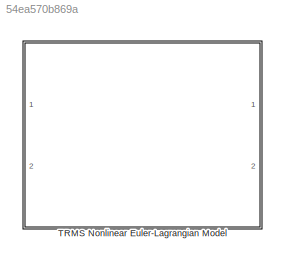
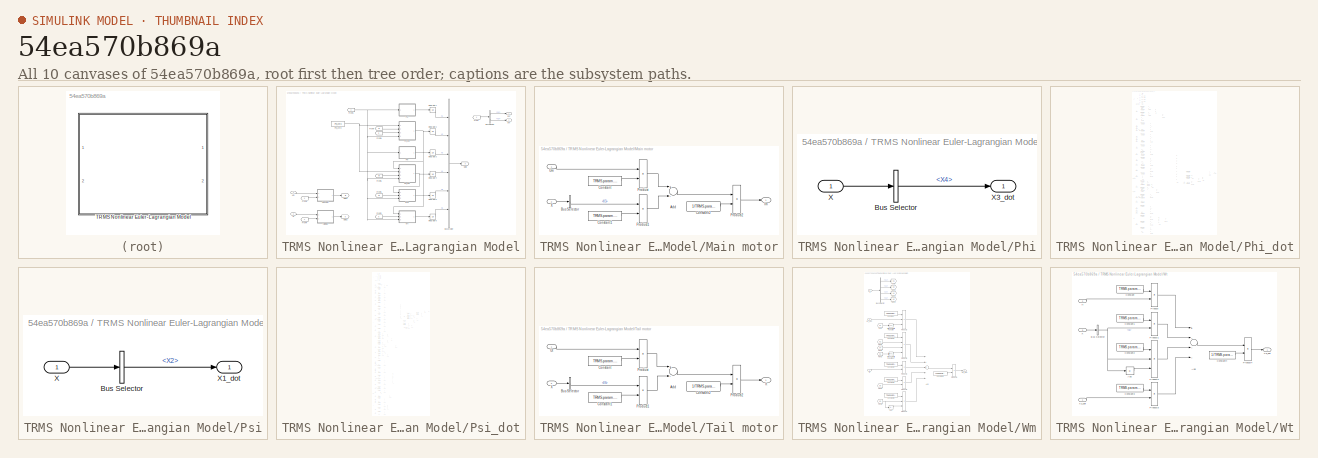
[diagram: thumbnail index - all 10 canvases of the model, root first then tree order]
MODEL slx_54ea570b869a
KIND library
CONFIG AbsTol = auto
CONFIG FixedStep = auto
CONFIG MaxStep = auto
CONFIG MinStep = auto
CONFIG RelTol = 1e-3
CONFIG SampleTimeConstraint = Unconstrained
CONFIG Solver = ode45
CONFIG SolverMode = Auto
CONFIG SolverName = ode45
CONFIG StartTime = 0.0
CONFIG StopTime = 10.0
BLOCK [SubSystem] TRMS Nonlinear Euler-Lagrangian Model
  Ports = [2, 2]
  RequestExecContextInheritance = off
  Variant = off
BLOCK [BusCreator] TRMS Nonlinear Euler-Lagrangian Model/Bus Creator
  DisplayOption = bar
  InheritFromInputs = on
  Inputs = 6
  Ports = [6, 1]
BLOCK [BusSelector] TRMS Nonlinear Euler-Lagrangian Model/Bus Selector
  OutputSignals = X1,X3
  Ports = [1, 2]
BLOCK [From] TRMS Nonlinear Euler-Lagrangian Model/From
  GotoTag = X
BLOCK [From] TRMS Nonlinear Euler-Lagrangian Model/From1
  GotoTag = X
BLOCK [From] TRMS Nonlinear Euler-Lagrangian Model/From2
  GotoTag = It
BLOCK [From] TRMS Nonlinear Euler-Lagrangian Model/From3
  GotoTag = X
BLOCK [From] TRMS Nonlinear Euler-Lagrangian Model/From4
  GotoTag = X
BLOCK [From] TRMS Nonlinear Euler-Lagrangian Model/From5
  GotoTag = Im
BLOCK [From] TRMS Nonlinear Euler-Lagrangian Model/From6
  GotoTag = Im
BLOCK [From] TRMS Nonlinear Euler-Lagrangian Model/From7
  GotoTag = Im
BLOCK [From] TRMS Nonlinear Euler-Lagrangian Model/From8
  GotoTag = It
BLOCK [Goto] TRMS Nonlinear Euler-Lagrangian Model/Goto
  GotoTag = X
BLOCK [Goto] TRMS Nonlinear Euler-Lagrangian Model/Goto1
  GotoTag = Im
BLOCK [Goto] TRMS Nonlinear Euler-Lagrangian Model/Goto2
  GotoTag = It
BLOCK [Integrator] TRMS Nonlinear Euler-Lagrangian Model/Integrator1
  ContinuousStateAttributes = 'Psi'
  InitialCondition = Psi_zero
  Ports = [1, 1]
BLOCK [Integrator] TRMS Nonlinear Euler-Lagrangian Model/Integrator2
  ContinuousStateAttributes = 'Psi_dot'
  InitialCondition = Psi_dot_zero
  Ports = [1, 1]
BLOCK [Integrator] TRMS Nonlinear Euler-Lagrangian Model/Integrator3
  ContinuousStateAttributes = 'Phi'
  InitialCondition = Phi_zero
  Ports = [1, 1]
BLOCK [Integrator] TRMS Nonlinear Euler-Lagrangian Model/Integrator4
  ContinuousStateAttributes = 'Phi_dot'
  InitialCondition = Phi_dot_zero
  Ports = [1, 1]
BLOCK [Integrator] TRMS Nonlinear Euler-Lagrangian Model/Integrator5
  ContinuousStateAttributes = 'Wm'
  InitialCondition = Wm_zero
  Ports = [1, 1]
BLOCK [Integrator] TRMS Nonlinear Euler-Lagrangian Model/Integrator6
  ContinuousStateAttributes = 'Wt'
  InitialCondition = Wt_zero
  Ports = [1, 1]
BLOCK [SubSystem] TRMS Nonlinear Euler-Lagrangian Model/Main motor
  Ports = [2, 1]
  RequestExecContextInheritance = off
  Variant = off
BLOCK [Sum] TRMS Nonlinear Euler-Lagrangian Model/Main motor/Add
  InputSameDT = off
  Inputs = +-
  OutDataTypeStr = Inherit: Inherit via internal rule
  Ports = [2, 1]
  SaturateOnIntegerOverflow = off
BLOCK [BusSelector] TRMS Nonlinear Euler-Lagrangian Model/Main motor/Bus Selector
  OutputSignals = X5
  Ports = [1, 1]
BLOCK [Constant] TRMS Nonlinear Euler-Lagrangian Model/Main motor/Constant
  Value = TRMS.param.kum
BLOCK [Constant] TRMS Nonlinear Euler-Lagrangian Model/Main motor/Constant1
  Value = TRMS.param.kvm
BLOCK [Constant] TRMS Nonlinear Euler-Lagrangian Model/Main motor/Constant2
  Value = 1/TRMS.param.Rm
BLOCK [Outport] TRMS Nonlinear Euler-Lagrangian Model/Main motor/Im
  IconDisplay = Port number
BLOCK [Product] TRMS Nonlinear Euler-Lagrangian Model/Main motor/Product
  InputSameDT = off
  OutDataTypeStr = Inherit: Inherit via internal rule
  Ports = [2, 1]
  RndMeth = Floor
  SaturateOnIntegerOverflow = off
BLOCK [Product] TRMS Nonlinear Euler-Lagrangian Model/Main motor/Product1
  InputSameDT = off
  OutDataTypeStr = Inherit: Inherit via internal rule
  Ports = [2, 1]
  RndMeth = Floor
  SaturateOnIntegerOverflow = off
BLOCK [Product] TRMS Nonlinear Euler-Lagrangian Model/Main motor/Product2
  InputSameDT = off
  OutDataTypeStr = Inherit: Inherit via internal rule
  Ports = [2, 1]
  RndMeth = Floor
  SaturateOnIntegerOverflow = off
BLOCK [Inport] TRMS Nonlinear Euler-Lagrangian Model/Main motor/Um
  IconDisplay = Port number
BLOCK [Inport] TRMS Nonlinear Euler-Lagrangian Model/Main motor/X
  IconDisplay = Port number
  Port = 2
BLOCK [SubSystem] TRMS Nonlinear Euler-Lagrangian Model/Phi
  Ports = [1, 1]
  RequestExecContextInheritance = off
  Variant = off
BLOCK [BusSelector] TRMS Nonlinear Euler-Lagrangian Model/Phi/Bus Selector
  OutputSignals = X4
  Ports = [1, 1]
BLOCK [Inport] TRMS Nonlinear Euler-Lagrangian Model/Phi/X
  IconDisplay = Port number
BLOCK [Outport] TRMS Nonlinear Euler-Lagrangian Model/Phi/X3_dot
  IconDisplay = Port number
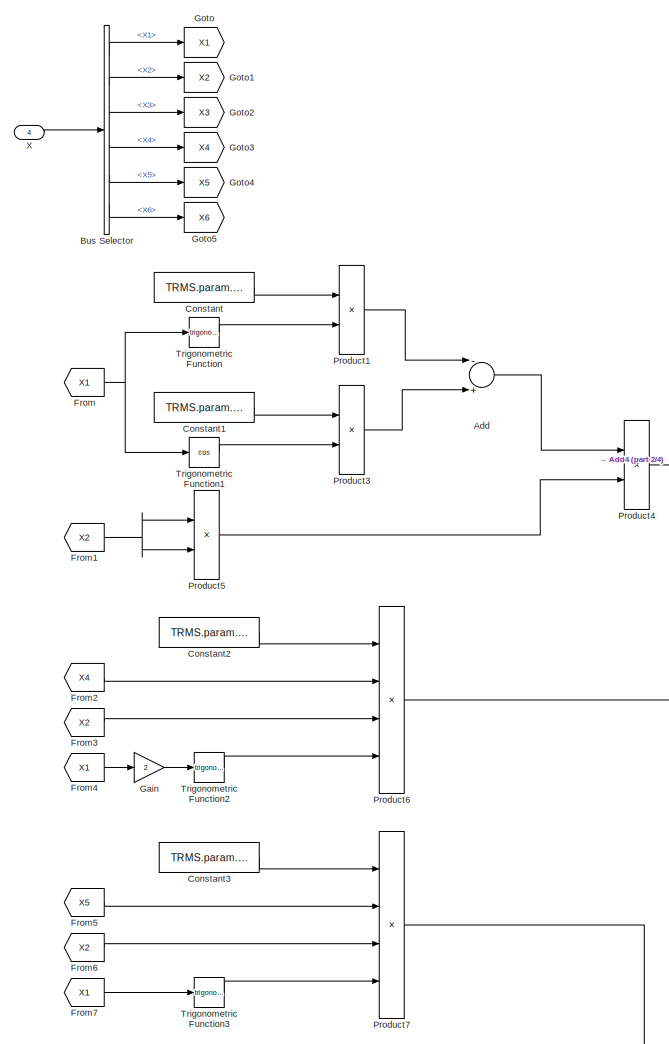
[diagram: TRMS Nonlinear Euler-Lagrangian Model/Phi_dot - part 1/4, top left region]
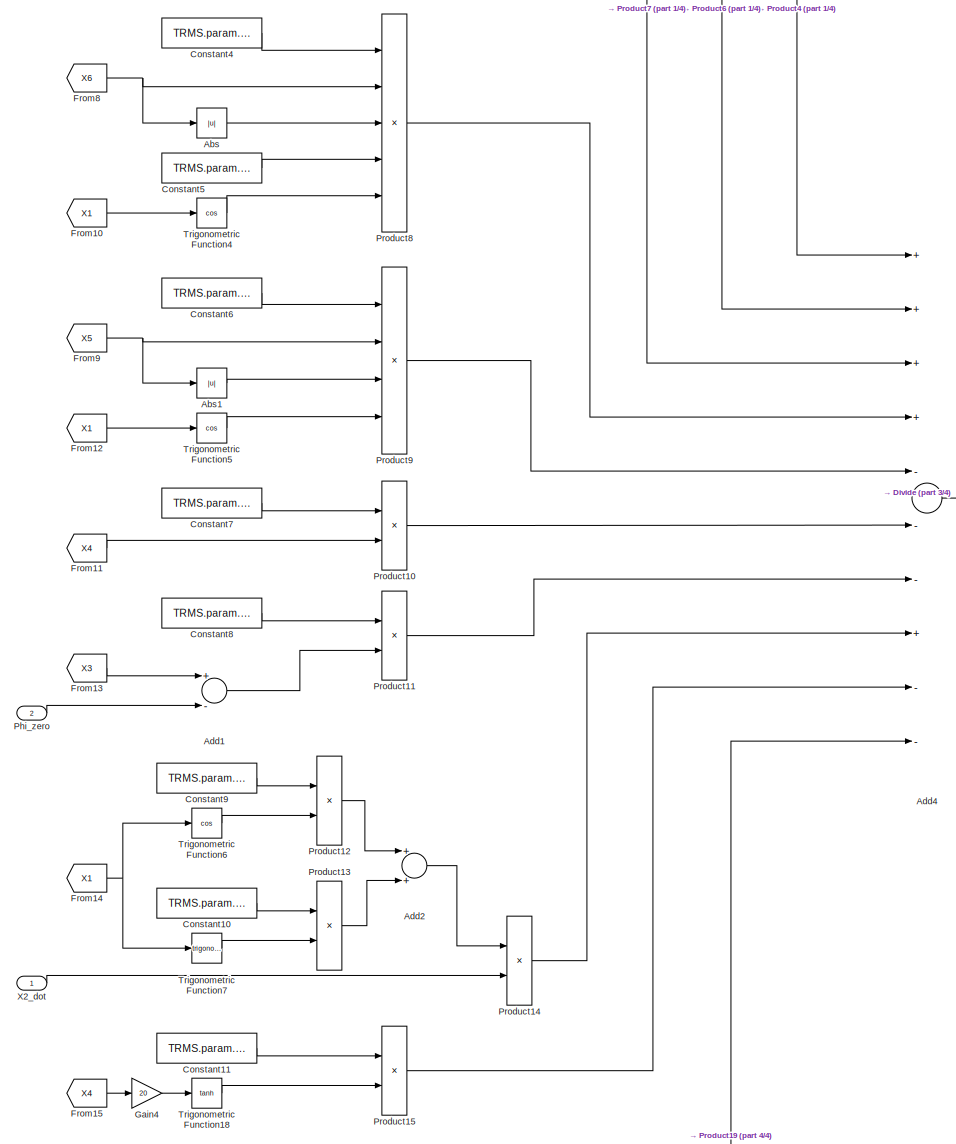
[diagram: TRMS Nonlinear Euler-Lagrangian Model/Phi_dot - part 2/4, middle left region]
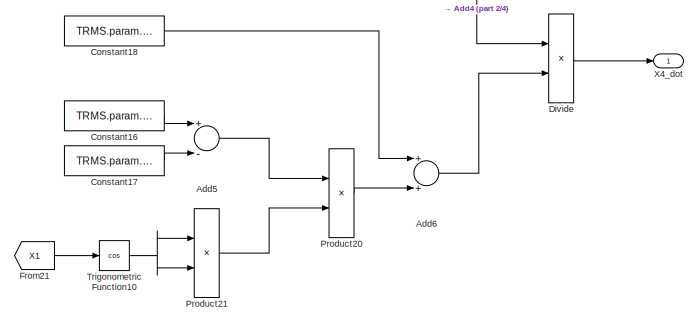
[diagram: TRMS Nonlinear Euler-Lagrangian Model/Phi_dot - part 3/4, middle right region]
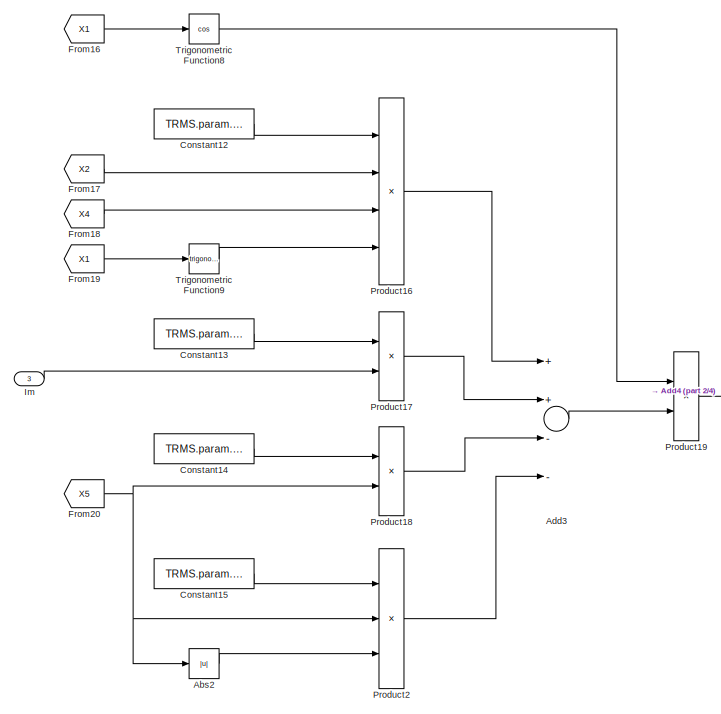
[diagram: TRMS Nonlinear Euler-Lagrangian Model/Phi_dot - part 4/4, bottom left region]
BLOCK [SubSystem] TRMS Nonlinear Euler-Lagrangian Model/Phi_dot
  Ports = [4, 1]
  RequestExecContextInheritance = off
  Variant = off
BLOCK [Abs] TRMS Nonlinear Euler-Lagrangian Model/Phi_dot/Abs
  SaturateOnIntegerOverflow = off
BLOCK [Abs] TRMS Nonlinear Euler-Lagrangian Model/Phi_dot/Abs1
  SaturateOnIntegerOverflow = off
BLOCK [Abs] TRMS Nonlinear Euler-Lagrangian Model/Phi_dot/Abs2
  SaturateOnIntegerOverflow = off
BLOCK [Sum] TRMS Nonlinear Euler-Lagrangian Model/Phi_dot/Add
  InputSameDT = off
  Inputs = -+
  OutDataTypeStr = Inherit: Inherit via internal rule
  Ports = [2, 1]
  SaturateOnIntegerOverflow = off
BLOCK [Sum] TRMS Nonlinear Euler-Lagrangian Model/Phi_dot/Add1
  InputSameDT = off
  Inputs = +-
  OutDataTypeStr = Inherit: Inherit via internal rule
  Ports = [2, 1]
  SaturateOnIntegerOverflow = off
BLOCK [Sum] TRMS Nonlinear Euler-Lagrangian Model/Phi_dot/Add2
  InputSameDT = off
  OutDataTypeStr = Inherit: Inherit via internal rule
  Ports = [2, 1]
  SaturateOnIntegerOverflow = off
BLOCK [Sum] TRMS Nonlinear Euler-Lagrangian Model/Phi_dot/Add3
  InputSameDT = off
  Inputs = ++--
  OutDataTypeStr = Inherit: Inherit via internal rule
  Ports = [4, 1]
  SaturateOnIntegerOverflow = off
BLOCK [Sum] TRMS Nonlinear Euler-Lagrangian Model/Phi_dot/Add4
  InputSameDT = off
  Inputs = ++++---+--
  OutDataTypeStr = Inherit: Inherit via internal rule
  Ports = [10, 1]
  SaturateOnIntegerOverflow = off
BLOCK [Sum] TRMS Nonlinear Euler-Lagrangian Model/Phi_dot/Add5
  InputSameDT = off
  Inputs = +-
  OutDataTypeStr = Inherit: Inherit via internal rule
  Ports = [2, 1]
  SaturateOnIntegerOverflow = off
BLOCK [Sum] TRMS Nonlinear Euler-Lagrangian Model/Phi_dot/Add6
  InputSameDT = off
  OutDataTypeStr = Inherit: Inherit via internal rule
  Ports = [2, 1]
  SaturateOnIntegerOverflow = off
BLOCK [BusSelector] TRMS Nonlinear Euler-Lagrangian Model/Phi_dot/Bus Selector
  OutputSignals = X1,X2,X3,X4,X5,X6
  Ports = [1, 6]
BLOCK [Constant] TRMS Nonlinear Euler-Lagrangian Model/Phi_dot/Constant
  Value = TRMS.param.Hz
BLOCK [Constant] TRMS Nonlinear Euler-Lagrangian Model/Phi_dot/Constant1
  Value = TRMS.param.Hy
BLOCK [Constant] TRMS Nonlinear Euler-Lagrangian Model/Phi_dot/Constant10
  Value = TRMS.param.Hy
BLOCK [Constant] TRMS Nonlinear Euler-Lagrangian Model/Phi_dot/Constant11
  Value = TRMS.param.fcphi
BLOCK [Constant] TRMS Nonlinear Euler-Lagrangian Model/Phi_dot/Constant12
  Value = TRMS.param.Im1
BLOCK [Constant] TRMS Nonlinear Euler-Lagrangian Model/Phi_dot/Constant13
  Value = TRMS.param.ktm
BLOCK [Constant] TRMS Nonlinear Euler-Lagrangian Model/Phi_dot/Constant14
  Value = TRMS.param.fvm
BLOCK [Constant] TRMS Nonlinear Euler-Lagrangian Model/Phi_dot/Constant15
  Value = TRMS.param.Crm
BLOCK [Constant] TRMS Nonlinear Euler-Lagrangian Model/Phi_dot/Constant16
  Value = TRMS.param.Ic
BLOCK [Constant] TRMS Nonlinear Euler-Lagrangian Model/Phi_dot/Constant17
  Value = TRMS.param.Im1
BLOCK [Constant] TRMS Nonlinear Euler-Lagrangian Model/Phi_dot/Constant18
  Value = TRMS.param.Iphi
BLOCK [Constant] TRMS Nonlinear Euler-Lagrangian Model/Phi_dot/Constant2
  Value = TRMS.param.Ic
BLOCK [Constant] TRMS Nonlinear Euler-Lagrangian Model/Phi_dot/Constant3
  Value = TRMS.param.Im1
BLOCK [Constant] TRMS Nonlinear Euler-Lagrangian Model/Phi_dot/Constant4
  Value = TRMS.param.Ctt
BLOCK [Constant] TRMS Nonlinear Euler-Lagrangian Model/Phi_dot/Constant5
  Value = TRMS.param.lt
BLOCK [Constant] TRMS Nonlinear Euler-Lagrangian Model/Phi_dot/Constant6
  Value = TRMS.param.Crm
BLOCK [Constant] TRMS Nonlinear Euler-Lagrangian Model/Phi_dot/Constant7
  Value = TRMS.param.fvphi
BLOCK [Constant] TRMS Nonlinear Euler-Lagrangian Model/Phi_dot/Constant8
  Value = TRMS.param.Cc
BLOCK [Constant] TRMS Nonlinear Euler-Lagrangian Model/Phi_dot/Constant9
  Value = TRMS.param.Hz
BLOCK [Product] TRMS Nonlinear Euler-Lagrangian Model/Phi_dot/Divide
  InputSameDT = off
  Inputs = */
  OutDataTypeStr = Inherit: Inherit via internal rule
  Ports = [2, 1]
  RndMeth = Floor
  SaturateOnIntegerOverflow = off
BLOCK [From] TRMS Nonlinear Euler-Lagrangian Model/Phi_dot/From
  GotoTag = X1
BLOCK [From] TRMS Nonlinear Euler-Lagrangian Model/Phi_dot/From1
  GotoTag = X2
BLOCK [From] TRMS Nonlinear Euler-Lagrangian Model/Phi_dot/From10
  GotoTag = X1
BLOCK [From] TRMS Nonlinear Euler-Lagrangian Model/Phi_dot/From11
  GotoTag = X4
BLOCK [From] TRMS Nonlinear Euler-Lagrangian Model/Phi_dot/From12
  GotoTag = X1
BLOCK [From] TRMS Nonlinear Euler-Lagrangian Model/Phi_dot/From13
  GotoTag = X3
BLOCK [From] TRMS Nonlinear Euler-Lagrangian Model/Phi_dot/From14
  GotoTag = X1
BLOCK [From] TRMS Nonlinear Euler-Lagrangian Model/Phi_dot/From15
  GotoTag = X4
BLOCK [From] TRMS Nonlinear Euler-Lagrangian Model/Phi_dot/From16
  GotoTag = X1
BLOCK [From] TRMS Nonlinear Euler-Lagrangian Model/Phi_dot/From17
  GotoTag = X2
BLOCK [From] TRMS Nonlinear Euler-Lagrangian Model/Phi_dot/From18
  GotoTag = X4
BLOCK [From] TRMS Nonlinear Euler-Lagrangian Model/Phi_dot/From19
  GotoTag = X1
BLOCK [From] TRMS Nonlinear Euler-Lagrangian Model/Phi_dot/From2
  GotoTag = X4
BLOCK [From] TRMS Nonlinear Euler-Lagrangian Model/Phi_dot/From20
  GotoTag = X5
BLOCK [From] TRMS Nonlinear Euler-Lagrangian Model/Phi_dot/From21
  GotoTag = X1
BLOCK [From] TRMS Nonlinear Euler-Lagrangian Model/Phi_dot/From3
  GotoTag = X2
BLOCK [From] TRMS Nonlinear Euler-Lagrangian Model/Phi_dot/From4
  GotoTag = X1
BLOCK [From] TRMS Nonlinear Euler-Lagrangian Model/Phi_dot/From5
  GotoTag = X5
BLOCK [From] TRMS Nonlinear Euler-Lagrangian Model/Phi_dot/From6
  GotoTag = X2
BLOCK [From] TRMS Nonlinear Euler-Lagrangian Model/Phi_dot/From7
  GotoTag = X1
BLOCK [From] TRMS Nonlinear Euler-Lagrangian Model/Phi_dot/From8
  GotoTag = X6
BLOCK [From] TRMS Nonlinear Euler-Lagrangian Model/Phi_dot/From9
  GotoTag = X5
BLOCK [Gain] TRMS Nonlinear Euler-Lagrangian Model/Phi_dot/Gain
  Gain = 2
  OutDataTypeStr = Inherit: Inherit via internal rule
  ParamDataTypeStr = Inherit: Inherit via internal rule
  SaturateOnIntegerOverflow = off
BLOCK [Gain] TRMS Nonlinear Euler-Lagrangian Model/Phi_dot/Gain4
  Gain = 20
  OutDataTypeStr = Inherit: Inherit via internal rule
  ParamDataTypeStr = Inherit: Inherit via internal rule
  SaturateOnIntegerOverflow = off
BLOCK [Goto] TRMS Nonlinear Euler-Lagrangian Model/Phi_dot/Goto
  GotoTag = X1
BLOCK [Goto] TRMS Nonlinear Euler-Lagrangian Model/Phi_dot/Goto1
  GotoTag = X2
BLOCK [Goto] TRMS Nonlinear Euler-Lagrangian Model/Phi_dot/Goto2
  GotoTag = X3
BLOCK [Goto] TRMS Nonlinear Euler-Lagrangian Model/Phi_dot/Goto3
  GotoTag = X4
BLOCK [Goto] TRMS Nonlinear Euler-Lagrangian Model/Phi_dot/Goto4
  GotoTag = X5
BLOCK [Goto] TRMS Nonlinear Euler-Lagrangian Model/Phi_dot/Goto5
  GotoTag = X6
BLOCK [Inport] TRMS Nonlinear Euler-Lagrangian Model/Phi_dot/Im
  IconDisplay = Port number
  Port = 3
BLOCK [Inport] TRMS Nonlinear Euler-Lagrangian Model/Phi_dot/Phi_zero
  IconDisplay = Port number
  Port = 2
BLOCK [Product] TRMS Nonlinear Euler-Lagrangian Model/Phi_dot/Product1
  InputSameDT = off
  OutDataTypeStr = Inherit: Inherit via internal rule
  Ports = [2, 1]
  RndMeth = Floor
  SaturateOnIntegerOverflow = off
BLOCK [Product] TRMS Nonlinear Euler-Lagrangian Model/Phi_dot/Product10
  InputSameDT = off
  OutDataTypeStr = Inherit: Inherit via internal rule
  Ports = [2, 1]
  RndMeth = Floor
  SaturateOnIntegerOverflow = off
BLOCK [Product] TRMS Nonlinear Euler-Lagrangian Model/Phi_dot/Product11
  InputSameDT = off
  OutDataTypeStr = Inherit: Inherit via internal rule
  Ports = [2, 1]
  RndMeth = Floor
  SaturateOnIntegerOverflow = off
BLOCK [Product] TRMS Nonlinear Euler-Lagrangian Model/Phi_dot/Product12
  InputSameDT = off
  OutDataTypeStr = Inherit: Inherit via internal rule
  Ports = [2, 1]
  RndMeth = Floor
  SaturateOnIntegerOverflow = off
BLOCK [Product] TRMS Nonlinear Euler-Lagrangian Model/Phi_dot/Product13
  InputSameDT = off
  OutDataTypeStr = Inherit: Inherit via internal rule
  Ports = [2, 1]
  RndMeth = Floor
  SaturateOnIntegerOverflow = off
BLOCK [Product] TRMS Nonlinear Euler-Lagrangian Model/Phi_dot/Product14
  InputSameDT = off
  OutDataTypeStr = Inherit: Inherit via internal rule
  Ports = [2, 1]
  RndMeth = Floor
  SaturateOnIntegerOverflow = off
BLOCK [Product] TRMS Nonlinear Euler-Lagrangian Model/Phi_dot/Product15
  InputSameDT = off
  OutDataTypeStr = Inherit: Inherit via internal rule
  Ports = [2, 1]
  RndMeth = Floor
  SaturateOnIntegerOverflow = off
BLOCK [Product] TRMS Nonlinear Euler-Lagrangian Model/Phi_dot/Product16
  InputSameDT = off
  Inputs = 4
  OutDataTypeStr = Inherit: Inherit via internal rule
  Ports = [4, 1]
  RndMeth = Floor
  SaturateOnIntegerOverflow = off
BLOCK [Product] TRMS Nonlinear Euler-Lagrangian Model/Phi_dot/Product17
  InputSameDT = off
  OutDataTypeStr = Inherit: Inherit via internal rule
  Ports = [2, 1]
  RndMeth = Floor
  SaturateOnIntegerOverflow = off
BLOCK [Product] TRMS Nonlinear Euler-Lagrangian Model/Phi_dot/Product18
  InputSameDT = off
  OutDataTypeStr = Inherit: Inherit via internal rule
  Ports = [2, 1]
  RndMeth = Floor
  SaturateOnIntegerOverflow = off
BLOCK [Product] TRMS Nonlinear Euler-Lagrangian Model/Phi_dot/Product19
  InputSameDT = off
  OutDataTypeStr = Inherit: Inherit via internal rule
  Ports = [2, 1]
  RndMeth = Floor
  SaturateOnIntegerOverflow = off
BLOCK [Product] TRMS Nonlinear Euler-Lagrangian Model/Phi_dot/Product2
  InputSameDT = off
  Inputs = 3
  OutDataTypeStr = Inherit: Inherit via internal rule
  Ports = [3, 1]
  RndMeth = Floor
  SaturateOnIntegerOverflow = off
BLOCK [Product] TRMS Nonlinear Euler-Lagrangian Model/Phi_dot/Product20
  InputSameDT = off
  OutDataTypeStr = Inherit: Inherit via internal rule
  Ports = [2, 1]
  RndMeth = Floor
  SaturateOnIntegerOverflow = off
BLOCK [Product] TRMS Nonlinear Euler-Lagrangian Model/Phi_dot/Product21
  InputSameDT = off
  OutDataTypeStr = Inherit: Inherit via internal rule
  Ports = [2, 1]
  RndMeth = Floor
  SaturateOnIntegerOverflow = off
BLOCK [Product] TRMS Nonlinear Euler-Lagrangian Model/Phi_dot/Product3
  InputSameDT = off
  OutDataTypeStr = Inherit: Inherit via internal rule
  Ports = [2, 1]
  RndMeth = Floor
  SaturateOnIntegerOverflow = off
BLOCK [Product] TRMS Nonlinear Euler-Lagrangian Model/Phi_dot/Product4
  InputSameDT = off
  OutDataTypeStr = Inherit: Inherit via internal rule
  Ports = [2, 1]
  RndMeth = Floor
  SaturateOnIntegerOverflow = off
BLOCK [Product] TRMS Nonlinear Euler-Lagrangian Model/Phi_dot/Product5
  InputSameDT = off
  OutDataTypeStr = Inherit: Inherit via internal rule
  Ports = [2, 1]
  RndMeth = Floor
  SaturateOnIntegerOverflow = off
BLOCK [Product] TRMS Nonlinear Euler-Lagrangian Model/Phi_dot/Product6
  InputSameDT = off
  Inputs = 4
  OutDataTypeStr = Inherit: Inherit via internal rule
  Ports = [4, 1]
  RndMeth = Floor
  SaturateOnIntegerOverflow = off
BLOCK [Product] TRMS Nonlinear Euler-Lagrangian Model/Phi_dot/Product7
  InputSameDT = off
  Inputs = 4
  OutDataTypeStr = Inherit: Inherit via internal rule
  Ports = [4, 1]
  RndMeth = Floor
  SaturateOnIntegerOverflow = off
BLOCK [Product] TRMS Nonlinear Euler-Lagrangian Model/Phi_dot/Product8
  InputSameDT = off
  Inputs = 5
  OutDataTypeStr = Inherit: Inherit via internal rule
  Ports = [5, 1]
  RndMeth = Floor
  SaturateOnIntegerOverflow = off
BLOCK [Product] TRMS Nonlinear Euler-Lagrangian Model/Phi_dot/Product9
  InputSameDT = off
  Inputs = 4
  OutDataTypeStr = Inherit: Inherit via internal rule
  Ports = [4, 1]
  RndMeth = Floor
  SaturateOnIntegerOverflow = off
BLOCK [Trigonometry] TRMS Nonlinear Euler-Lagrangian Model/Phi_dot/Trigonometric Function
  Ports = [1, 1]
BLOCK [Trigonometry] TRMS Nonlinear Euler-Lagrangian Model/Phi_dot/Trigonometric Function1
  Operator = cos
  Ports = [1, 1]
BLOCK [Trigonometry] TRMS Nonlinear Euler-Lagrangian Model/Phi_dot/Trigonometric Function10
  Operator = cos
  Ports = [1, 1]
BLOCK [Trigonometry] TRMS Nonlinear Euler-Lagrangian Model/Phi_dot/Trigonometric Function18
  Operator = tanh
  Ports = [1, 1]
BLOCK [Trigonometry] TRMS Nonlinear Euler-Lagrangian Model/Phi_dot/Trigonometric Function2
  Ports = [1, 1]
BLOCK [Trigonometry] TRMS Nonlinear Euler-Lagrangian Model/Phi_dot/Trigonometric Function3
  Ports = [1, 1]
BLOCK [Trigonometry] TRMS Nonlinear Euler-Lagrangian Model/Phi_dot/Trigonometric Function4
  Operator = cos
  Ports = [1, 1]
BLOCK [Trigonometry] TRMS Nonlinear Euler-Lagrangian Model/Phi_dot/Trigonometric Function5
  Operator = cos
  Ports = [1, 1]
BLOCK [Trigonometry] TRMS Nonlinear Euler-Lagrangian Model/Phi_dot/Trigonometric Function6
  Operator = cos
  Ports = [1, 1]
BLOCK [Trigonometry] TRMS Nonlinear Euler-Lagrangian Model/Phi_dot/Trigonometric Function7
  Ports = [1, 1]
BLOCK [Trigonometry] TRMS Nonlinear Euler-Lagrangian Model/Phi_dot/Trigonometric Function8
  Operator = cos
  Ports = [1, 1]
BLOCK [Trigonometry] TRMS Nonlinear Euler-Lagrangian Model/Phi_dot/Trigonometric Function9
  Ports = [1, 1]
BLOCK [Inport] TRMS Nonlinear Euler-Lagrangian Model/Phi_dot/X
  IconDisplay = Port number
  Port = 4
BLOCK [Inport] TRMS Nonlinear Euler-Lagrangian Model/Phi_dot/X2_dot
  IconDisplay = Port number
BLOCK [Outport] TRMS Nonlinear Euler-Lagrangian Model/Phi_dot/X4_dot
  IconDisplay = Port number
BLOCK [Constant] TRMS Nonlinear Euler-Lagrangian Model/Phi_zero
  Value = Phi_zero
BLOCK [SubSystem] TRMS Nonlinear Euler-Lagrangian Model/Psi
  Ports = [1, 1]
  RequestExecContextInheritance = off
  Variant = off
BLOCK [BusSelector] TRMS Nonlinear Euler-Lagrangian Model/Psi/Bus Selector
  OutputSignals = X2
  Ports = [1, 1]
BLOCK [Inport] TRMS Nonlinear Euler-Lagrangian Model/Psi/X
  IconDisplay = Port number
BLOCK [Outport] TRMS Nonlinear Euler-Lagrangian Model/Psi/X1_dot
  IconDisplay = Port number
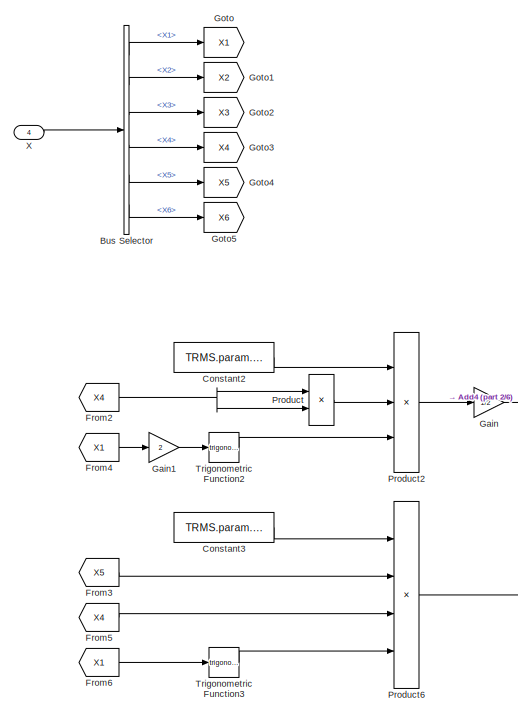
[diagram: TRMS Nonlinear Euler-Lagrangian Model/Psi_dot - part 1/6, top left region]
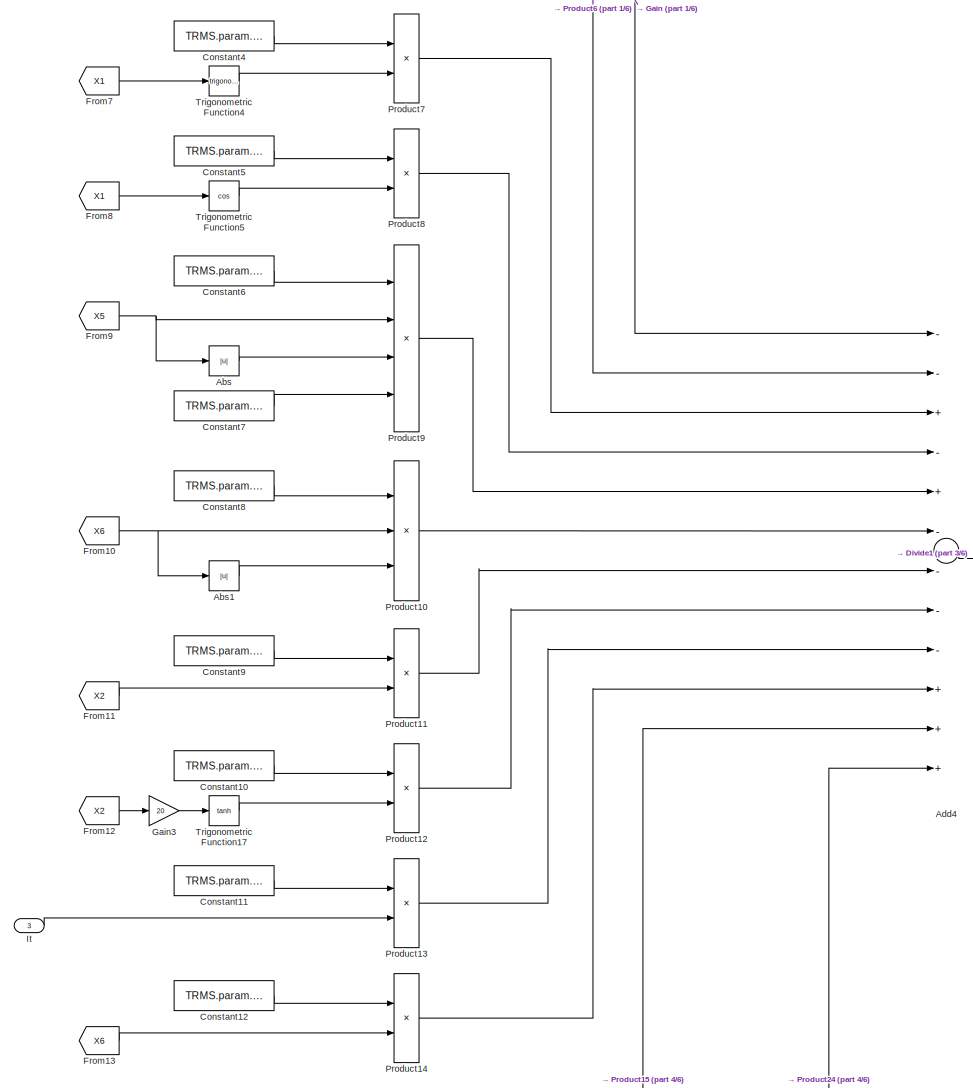
[diagram: TRMS Nonlinear Euler-Lagrangian Model/Psi_dot - part 2/6, top left region]
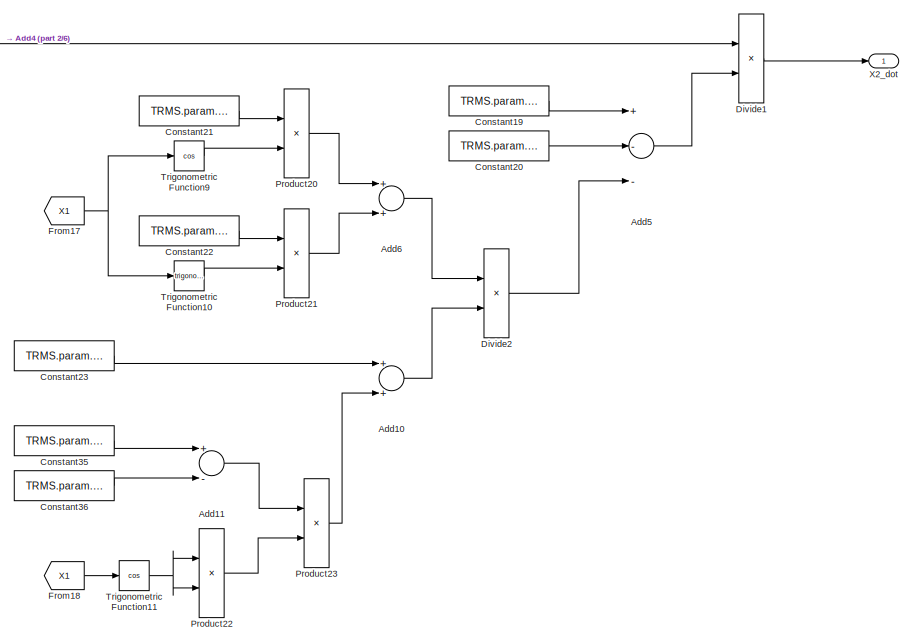
[diagram: TRMS Nonlinear Euler-Lagrangian Model/Psi_dot - part 3/6, top right region]
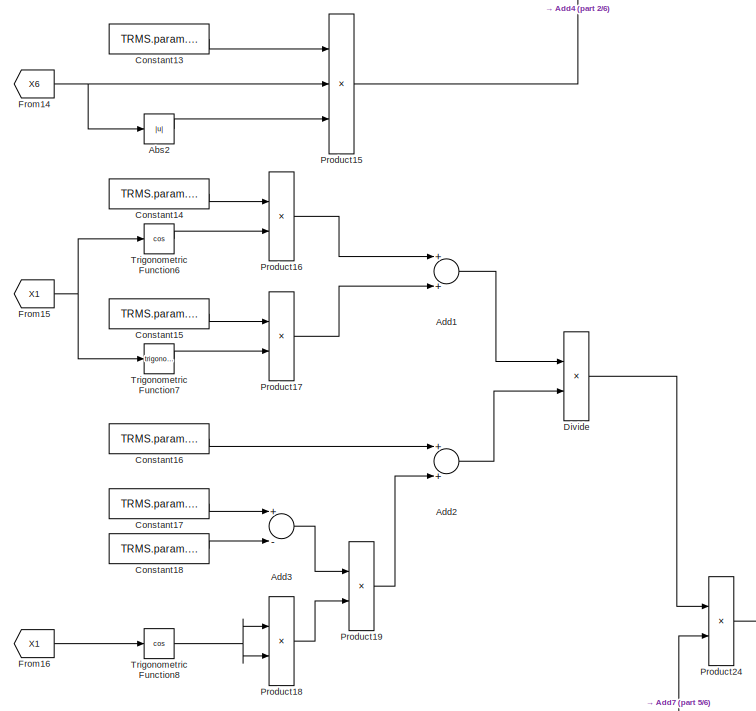
[diagram: TRMS Nonlinear Euler-Lagrangian Model/Psi_dot - part 4/6, middle left region]
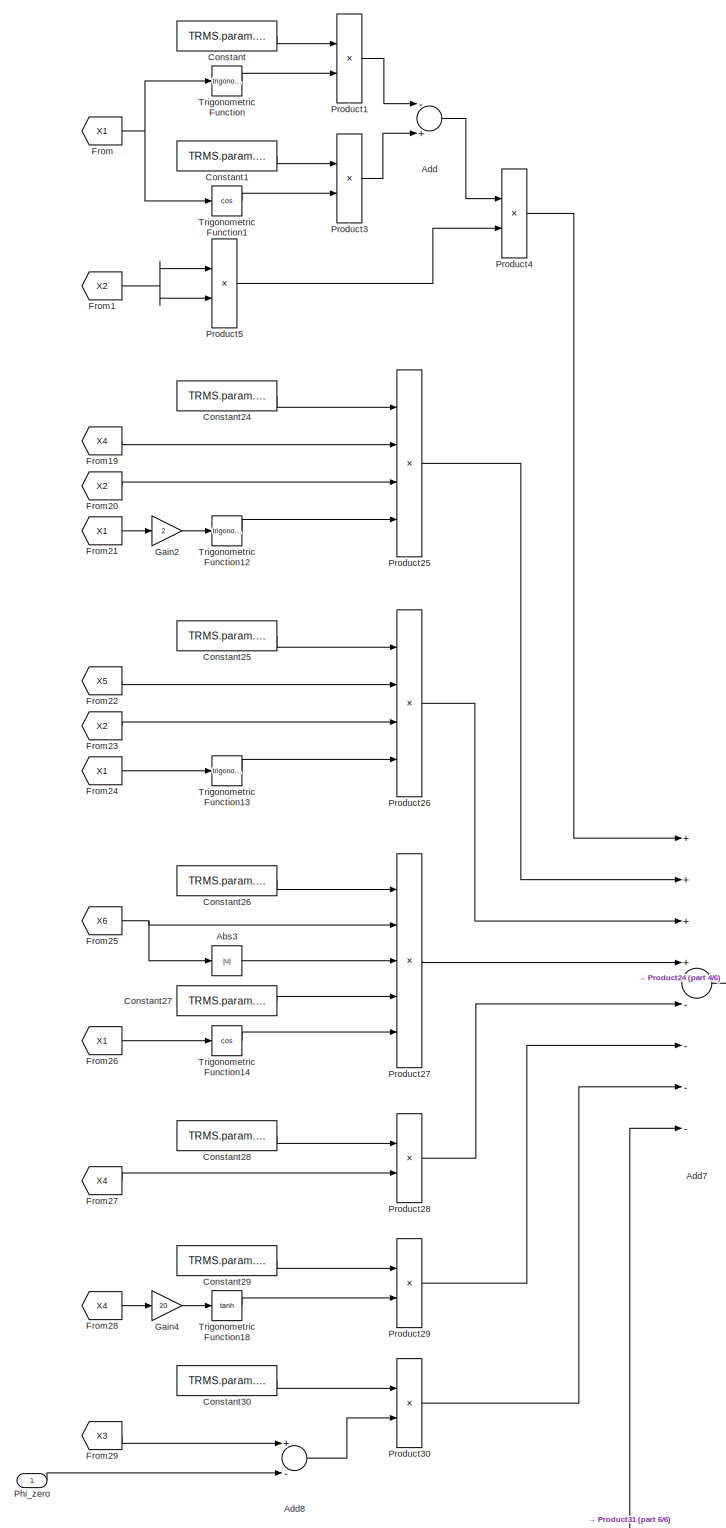
[diagram: TRMS Nonlinear Euler-Lagrangian Model/Psi_dot - part 5/6, bottom left region]
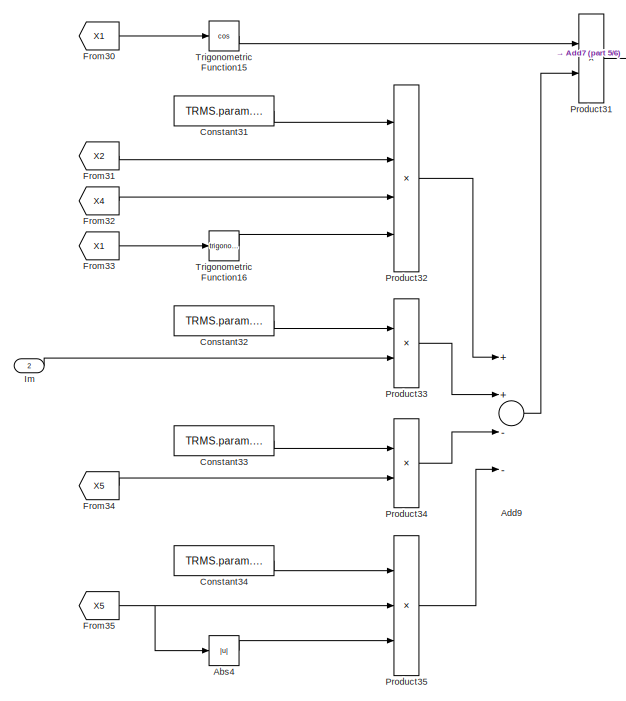
[diagram: TRMS Nonlinear Euler-Lagrangian Model/Psi_dot - part 6/6, bottom left region]
BLOCK [SubSystem] TRMS Nonlinear Euler-Lagrangian Model/Psi_dot
  Ports = [4, 1]
  RequestExecContextInheritance = off
  Variant = off
BLOCK [Abs] TRMS Nonlinear Euler-Lagrangian Model/Psi_dot/Abs
  SaturateOnIntegerOverflow = off
BLOCK [Abs] TRMS Nonlinear Euler-Lagrangian Model/Psi_dot/Abs1
  SaturateOnIntegerOverflow = off
BLOCK [Abs] TRMS Nonlinear Euler-Lagrangian Model/Psi_dot/Abs2
  SaturateOnIntegerOverflow = off
BLOCK [Abs] TRMS Nonlinear Euler-Lagrangian Model/Psi_dot/Abs3
  SaturateOnIntegerOverflow = off
BLOCK [Abs] TRMS Nonlinear Euler-Lagrangian Model/Psi_dot/Abs4
  SaturateOnIntegerOverflow = off
BLOCK [Sum] TRMS Nonlinear Euler-Lagrangian Model/Psi_dot/Add
  InputSameDT = off
  Inputs = -+
  OutDataTypeStr = Inherit: Inherit via internal rule
  Ports = [2, 1]
  SaturateOnIntegerOverflow = off
BLOCK [Sum] TRMS Nonlinear Euler-Lagrangian Model/Psi_dot/Add1
  InputSameDT = off
  OutDataTypeStr = Inherit: Inherit via internal rule
  Ports = [2, 1]
  SaturateOnIntegerOverflow = off
BLOCK [Sum] TRMS Nonlinear Euler-Lagrangian Model/Psi_dot/Add10
  InputSameDT = off
  OutDataTypeStr = Inherit: Inherit via internal rule
  Ports = [2, 1]
  SaturateOnIntegerOverflow = off
BLOCK [Sum] TRMS Nonlinear Euler-Lagrangian Model/Psi_dot/Add11
  InputSameDT = off
  Inputs = +-
  OutDataTypeStr = Inherit: Inherit via internal rule
  Ports = [2, 1]
  SaturateOnIntegerOverflow = off
BLOCK [Sum] TRMS Nonlinear Euler-Lagrangian Model/Psi_dot/Add2
  InputSameDT = off
  OutDataTypeStr = Inherit: Inherit via internal rule
  Ports = [2, 1]
  SaturateOnIntegerOverflow = off
BLOCK [Sum] TRMS Nonlinear Euler-Lagrangian Model/Psi_dot/Add3
  InputSameDT = off
  Inputs = +-
  OutDataTypeStr = Inherit: Inherit via internal rule
  Ports = [2, 1]
  SaturateOnIntegerOverflow = off
BLOCK [Sum] TRMS Nonlinear Euler-Lagrangian Model/Psi_dot/Add4
  InputSameDT = off
  Inputs = --+-+----+++
  OutDataTypeStr = Inherit: Inherit via internal rule
  Ports = [12, 1]
  SaturateOnIntegerOverflow = off
BLOCK [Sum] TRMS Nonlinear Euler-Lagrangian Model/Psi_dot/Add5
  InputSameDT = off
  Inputs = +--
  OutDataTypeStr = Inherit: Inherit via internal rule
  Ports = [3, 1]
  SaturateOnIntegerOverflow = off
BLOCK [Sum] TRMS Nonlinear Euler-Lagrangian Model/Psi_dot/Add6
  InputSameDT = off
  OutDataTypeStr = Inherit: Inherit via internal rule
  Ports = [2, 1]
  SaturateOnIntegerOverflow = off
BLOCK [Sum] TRMS Nonlinear Euler-Lagrangian Model/Psi_dot/Add7
  InputSameDT = off
  Inputs = ++++----
  OutDataTypeStr = Inherit: Inherit via internal rule
  Ports = [8, 1]
  SaturateOnIntegerOverflow = off
BLOCK [Sum] TRMS Nonlinear Euler-Lagrangian Model/Psi_dot/Add8
  InputSameDT = off
  Inputs = +-
  OutDataTypeStr = Inherit: Inherit via internal rule
  Ports = [2, 1]
  SaturateOnIntegerOverflow = off
BLOCK [Sum] TRMS Nonlinear Euler-Lagrangian Model/Psi_dot/Add9
  InputSameDT = off
  Inputs = ++--
  OutDataTypeStr = Inherit: Inherit via internal rule
  Ports = [4, 1]
  SaturateOnIntegerOverflow = off
BLOCK [BusSelector] TRMS Nonlinear Euler-Lagrangian Model/Psi_dot/Bus Selector
  OutputSignals = X1,X2,X3,X4,X5,X6
  Ports = [1, 6]
BLOCK [Constant] TRMS Nonlinear Euler-Lagrangian Model/Psi_dot/Constant
  Value = TRMS.param.Hz
BLOCK [Constant] TRMS Nonlinear Euler-Lagrangian Model/Psi_dot/Constant1
  Value = TRMS.param.Hy
BLOCK [Constant] TRMS Nonlinear Euler-Lagrangian Model/Psi_dot/Constant10
  Value = TRMS.param.fcpsi
BLOCK [Constant] TRMS Nonlinear Euler-Lagrangian Model/Psi_dot/Constant11
  Value = TRMS.param.ktt
BLOCK [Constant] TRMS Nonlinear Euler-Lagrangian Model/Psi_dot/Constant12
  Value = TRMS.param.fvt
BLOCK [Constant] TRMS Nonlinear Euler-Lagrangian Model/Psi_dot/Constant13
  Value = TRMS.param.Crt
BLOCK [Constant] TRMS Nonlinear Euler-Lagrangian Model/Psi_dot/Constant14
  Value = TRMS.param.Hz
BLOCK [Constant] TRMS Nonlinear Euler-Lagrangian Model/Psi_dot/Constant15
  Value = TRMS.param.Hy
BLOCK [Constant] TRMS Nonlinear Euler-Lagrangian Model/Psi_dot/Constant16
  Value = TRMS.param.Iphi
BLOCK [Constant] TRMS Nonlinear Euler-Lagrangian Model/Psi_dot/Constant17
  Value = TRMS.param.Ic
BLOCK [Constant] TRMS Nonlinear Euler-Lagrangian Model/Psi_dot/Constant18
  Value = TRMS.param.Im1
BLOCK [Constant] TRMS Nonlinear Euler-Lagrangian Model/Psi_dot/Constant19
  Value = TRMS.param.Ipsi
BLOCK [Constant] TRMS Nonlinear Euler-Lagrangian Model/Psi_dot/Constant2
  Value = TRMS.param.Ic
BLOCK [Constant] TRMS Nonlinear Euler-Lagrangian Model/Psi_dot/Constant20
  Value = TRMS.param.It1
BLOCK [Constant] TRMS Nonlinear Euler-Lagrangian Model/Psi_dot/Constant21
  Value = TRMS.param.Hz
BLOCK [Constant] TRMS Nonlinear Euler-Lagrangian Model/Psi_dot/Constant22
  Value = TRMS.param.Hy
BLOCK [Constant] TRMS Nonlinear Euler-Lagrangian Model/Psi_dot/Constant23
  Value = TRMS.param.Iphi
BLOCK [Constant] TRMS Nonlinear Euler-Lagrangian Model/Psi_dot/Constant24
  Value = TRMS.param.Ic
BLOCK [Constant] TRMS Nonlinear Euler-Lagrangian Model/Psi_dot/Constant25
  Value = TRMS.param.Im1
BLOCK [Constant] TRMS Nonlinear Euler-Lagrangian Model/Psi_dot/Constant26
  Value = TRMS.param.Ctt
BLOCK [Constant] TRMS Nonlinear Euler-Lagrangian Model/Psi_dot/Constant27
  Value = TRMS.param.lt
BLOCK [Constant] TRMS Nonlinear Euler-Lagrangian Model/Psi_dot/Constant28
  Value = TRMS.param.fvphi
BLOCK [Constant] TRMS Nonlinear Euler-Lagrangian Model/Psi_dot/Constant29
  Value = TRMS.param.fcphi
BLOCK [Constant] TRMS Nonlinear Euler-Lagrangian Model/Psi_dot/Constant3
  Value = TRMS.param.Im1
BLOCK [Constant] TRMS Nonlinear Euler-Lagrangian Model/Psi_dot/Constant30
  Value = TRMS.param.Cc
BLOCK [Constant] TRMS Nonlinear Euler-Lagrangian Model/Psi_dot/Constant31
  Value = TRMS.param.Im1
BLOCK [Constant] TRMS Nonlinear Euler-Lagrangian Model/Psi_dot/Constant32
  Value = TRMS.param.ktm
BLOCK [Constant] TRMS Nonlinear Euler-Lagrangian Model/Psi_dot/Constant33
  Value = TRMS.param.fvm
BLOCK [Constant] TRMS Nonlinear Euler-Lagrangian Model/Psi_dot/Constant34
  Value = TRMS.param.Crm
BLOCK [Constant] TRMS Nonlinear Euler-Lagrangian Model/Psi_dot/Constant35
  Value = TRMS.param.Ic
BLOCK [Constant] TRMS Nonlinear Euler-Lagrangian Model/Psi_dot/Constant36
  Value = TRMS.param.Im1
BLOCK [Constant] TRMS Nonlinear Euler-Lagrangian Model/Psi_dot/Constant4
  Value = TRMS.param.Gz
BLOCK [Constant] TRMS Nonlinear Euler-Lagrangian Model/Psi_dot/Constant5
  Value = TRMS.param.Gy
BLOCK [Constant] TRMS Nonlinear Euler-Lagrangian Model/Psi_dot/Constant6
  Value = TRMS.param.Ctm
BLOCK [Constant] TRMS Nonlinear Euler-Lagrangian Model/Psi_dot/Constant7
  Value = TRMS.param.lm
BLOCK [Constant] TRMS Nonlinear Euler-Lagrangian Model/Psi_dot/Constant8
  Value = TRMS.param.Crt
BLOCK [Constant] TRMS Nonlinear Euler-Lagrangian Model/Psi_dot/Constant9
  Value = TRMS.param.fvpsi
BLOCK [Product] TRMS Nonlinear Euler-Lagrangian Model/Psi_dot/Divide
  InputSameDT = off
  Inputs = */
  OutDataTypeStr = Inherit: Inherit via internal rule
  Ports = [2, 1]
  RndMeth = Floor
  SaturateOnIntegerOverflow = off
BLOCK [Product] TRMS Nonlinear Euler-Lagrangian Model/Psi_dot/Divide1
  InputSameDT = off
  Inputs = */
  OutDataTypeStr = Inherit: Inherit via internal rule
  Ports = [2, 1]
  RndMeth = Floor
  SaturateOnIntegerOverflow = off
BLOCK [Product] TRMS Nonlinear Euler-Lagrangian Model/Psi_dot/Divide2
  InputSameDT = off
  Inputs = */
  OutDataTypeStr = Inherit: Inherit via internal rule
  Ports = [2, 1]
  RndMeth = Floor
  SaturateOnIntegerOverflow = off
BLOCK [From] TRMS Nonlinear Euler-Lagrangian Model/Psi_dot/From
  GotoTag = X1
BLOCK [From] TRMS Nonlinear Euler-Lagrangian Model/Psi_dot/From1
  GotoTag = X2
BLOCK [From] TRMS Nonlinear Euler-Lagrangian Model/Psi_dot/From10
  GotoTag = X6
BLOCK [From] TRMS Nonlinear Euler-Lagrangian Model/Psi_dot/From11
  GotoTag = X2
BLOCK [From] TRMS Nonlinear Euler-Lagrangian Model/Psi_dot/From12
  GotoTag = X2
BLOCK [From] TRMS Nonlinear Euler-Lagrangian Model/Psi_dot/From13
  GotoTag = X6
BLOCK [From] TRMS Nonlinear Euler-Lagrangian Model/Psi_dot/From14
  GotoTag = X6
BLOCK [From] TRMS Nonlinear Euler-Lagrangian Model/Psi_dot/From15
  GotoTag = X1
BLOCK [From] TRMS Nonlinear Euler-Lagrangian Model/Psi_dot/From16
  GotoTag = X1
BLOCK [From] TRMS Nonlinear Euler-Lagrangian Model/Psi_dot/From17
  GotoTag = X1
BLOCK [From] TRMS Nonlinear Euler-Lagrangian Model/Psi_dot/From18
  GotoTag = X1
BLOCK [From] TRMS Nonlinear Euler-Lagrangian Model/Psi_dot/From19
  GotoTag = X4
BLOCK [From] TRMS Nonlinear Euler-Lagrangian Model/Psi_dot/From2
  GotoTag = X4
BLOCK [From] TRMS Nonlinear Euler-Lagrangian Model/Psi_dot/From20
  GotoTag = X2
BLOCK [From] TRMS Nonlinear Euler-Lagrangian Model/Psi_dot/From21
  GotoTag = X1
BLOCK [From] TRMS Nonlinear Euler-Lagrangian Model/Psi_dot/From22
  GotoTag = X5
BLOCK [From] TRMS Nonlinear Euler-Lagrangian Model/Psi_dot/From23
  GotoTag = X2
BLOCK [From] TRMS Nonlinear Euler-Lagrangian Model/Psi_dot/From24
  GotoTag = X1
BLOCK [From] TRMS Nonlinear Euler-Lagrangian Model/Psi_dot/From25
  GotoTag = X6
BLOCK [From] TRMS Nonlinear Euler-Lagrangian Model/Psi_dot/From26
  GotoTag = X1
BLOCK [From] TRMS Nonlinear Euler-Lagrangian Model/Psi_dot/From27
  GotoTag = X4
BLOCK [From] TRMS Nonlinear Euler-Lagrangian Model/Psi_dot/From28
  GotoTag = X4
BLOCK [From] TRMS Nonlinear Euler-Lagrangian Model/Psi_dot/From29
  GotoTag = X3
BLOCK [From] TRMS Nonlinear Euler-Lagrangian Model/Psi_dot/From3
  GotoTag = X5
BLOCK [From] TRMS Nonlinear Euler-Lagrangian Model/Psi_dot/From30
  GotoTag = X1
BLOCK [From] TRMS Nonlinear Euler-Lagrangian Model/Psi_dot/From31
  GotoTag = X2
BLOCK [From] TRMS Nonlinear Euler-Lagrangian Model/Psi_dot/From32
  GotoTag = X4
BLOCK [From] TRMS Nonlinear Euler-Lagrangian Model/Psi_dot/From33
  GotoTag = X1
BLOCK [From] TRMS Nonlinear Euler-Lagrangian Model/Psi_dot/From34
  GotoTag = X5
BLOCK [From] TRMS Nonlinear Euler-Lagrangian Model/Psi_dot/From35
  GotoTag = X5
BLOCK [From] TRMS Nonlinear Euler-Lagrangian Model/Psi_dot/From4
  GotoTag = X1
BLOCK [From] TRMS Nonlinear Euler-Lagrangian Model/Psi_dot/From5
  GotoTag = X4
BLOCK [From] TRMS Nonlinear Euler-Lagrangian Model/Psi_dot/From6
  GotoTag = X1
BLOCK [From] TRMS Nonlinear Euler-Lagrangian Model/Psi_dot/From7
  GotoTag = X1
BLOCK [From] TRMS Nonlinear Euler-Lagrangian Model/Psi_dot/From8
  GotoTag = X1
BLOCK [From] TRMS Nonlinear Euler-Lagrangian Model/Psi_dot/From9
  GotoTag = X5
BLOCK [Gain] TRMS Nonlinear Euler-Lagrangian Model/Psi_dot/Gain
  Gain = 1/2
  OutDataTypeStr = Inherit: Inherit via internal rule
  ParamDataTypeStr = Inherit: Inherit via internal rule
  SaturateOnIntegerOverflow = off
BLOCK [Gain] TRMS Nonlinear Euler-Lagrangian Model/Psi_dot/Gain1
  Gain = 2
  OutDataTypeStr = Inherit: Inherit via internal rule
  ParamDataTypeStr = Inherit: Inherit via internal rule
  SaturateOnIntegerOverflow = off
BLOCK [Gain] TRMS Nonlinear Euler-Lagrangian Model/Psi_dot/Gain2
  Gain = 2
  OutDataTypeStr = Inherit: Inherit via internal rule
  ParamDataTypeStr = Inherit: Inherit via internal rule
  SaturateOnIntegerOverflow = off
BLOCK [Gain] TRMS Nonlinear Euler-Lagrangian Model/Psi_dot/Gain3
  Gain = 20
  OutDataTypeStr = Inherit: Inherit via internal rule
  ParamDataTypeStr = Inherit: Inherit via internal rule
  SaturateOnIntegerOverflow = off
BLOCK [Gain] TRMS Nonlinear Euler-Lagrangian Model/Psi_dot/Gain4
  Gain = 20
  OutDataTypeStr = Inherit: Inherit via internal rule
  ParamDataTypeStr = Inherit: Inherit via internal rule
  SaturateOnIntegerOverflow = off
BLOCK [Goto] TRMS Nonlinear Euler-Lagrangian Model/Psi_dot/Goto
  GotoTag = X1
BLOCK [Goto] TRMS Nonlinear Euler-Lagrangian Model/Psi_dot/Goto1
  GotoTag = X2
BLOCK [Goto] TRMS Nonlinear Euler-Lagrangian Model/Psi_dot/Goto2
  GotoTag = X3
BLOCK [Goto] TRMS Nonlinear Euler-Lagrangian Model/Psi_dot/Goto3
  GotoTag = X4
BLOCK [Goto] TRMS Nonlinear Euler-Lagrangian Model/Psi_dot/Goto4
  GotoTag = X5
BLOCK [Goto] TRMS Nonlinear Euler-Lagrangian Model/Psi_dot/Goto5
  GotoTag = X6
BLOCK [Inport] TRMS Nonlinear Euler-Lagrangian Model/Psi_dot/Im
  IconDisplay = Port number
  Port = 2
BLOCK [Inport] TRMS Nonlinear Euler-Lagrangian Model/Psi_dot/It
  IconDisplay = Port number
  Port = 3
BLOCK [Inport] TRMS Nonlinear Euler-Lagrangian Model/Psi_dot/Phi_zero
  IconDisplay = Port number
BLOCK [Product] TRMS Nonlinear Euler-Lagrangian Model/Psi_dot/Product
  InputSameDT = off
  OutDataTypeStr = Inherit: Inherit via internal rule
  Ports = [2, 1]
  RndMeth = Floor
  SaturateOnIntegerOverflow = off
BLOCK [Product] TRMS Nonlinear Euler-Lagrangian Model/Psi_dot/Product1
  InputSameDT = off
  OutDataTypeStr = Inherit: Inherit via internal rule
  Ports = [2, 1]
  RndMeth = Floor
  SaturateOnIntegerOverflow = off
BLOCK [Product] TRMS Nonlinear Euler-Lagrangian Model/Psi_dot/Product10
  InputSameDT = off
  Inputs = 3
  OutDataTypeStr = Inherit: Inherit via internal rule
  Ports = [3, 1]
  RndMeth = Floor
  SaturateOnIntegerOverflow = off
BLOCK [Product] TRMS Nonlinear Euler-Lagrangian Model/Psi_dot/Product11
  InputSameDT = off
  OutDataTypeStr = Inherit: Inherit via internal rule
  Ports = [2, 1]
  RndMeth = Floor
  SaturateOnIntegerOverflow = off
BLOCK [Product] TRMS Nonlinear Euler-Lagrangian Model/Psi_dot/Product12
  InputSameDT = off
  OutDataTypeStr = Inherit: Inherit via internal rule
  Ports = [2, 1]
  RndMeth = Floor
  SaturateOnIntegerOverflow = off
BLOCK [Product] TRMS Nonlinear Euler-Lagrangian Model/Psi_dot/Product13
  InputSameDT = off
  OutDataTypeStr = Inherit: Inherit via internal rule
  Ports = [2, 1]
  RndMeth = Floor
  SaturateOnIntegerOverflow = off
BLOCK [Product] TRMS Nonlinear Euler-Lagrangian Model/Psi_dot/Product14
  InputSameDT = off
  OutDataTypeStr = Inherit: Inherit via internal rule
  Ports = [2, 1]
  RndMeth = Floor
  SaturateOnIntegerOverflow = off
BLOCK [Product] TRMS Nonlinear Euler-Lagrangian Model/Psi_dot/Product15
  InputSameDT = off
  Inputs = 3
  OutDataTypeStr = Inherit: Inherit via internal rule
  Ports = [3, 1]
  RndMeth = Floor
  SaturateOnIntegerOverflow = off
BLOCK [Product] TRMS Nonlinear Euler-Lagrangian Model/Psi_dot/Product16
  InputSameDT = off
  OutDataTypeStr = Inherit: Inherit via internal rule
  Ports = [2, 1]
  RndMeth = Floor
  SaturateOnIntegerOverflow = off
BLOCK [Product] TRMS Nonlinear Euler-Lagrangian Model/Psi_dot/Product17
  InputSameDT = off
  OutDataTypeStr = Inherit: Inherit via internal rule
  Ports = [2, 1]
  RndMeth = Floor
  SaturateOnIntegerOverflow = off
BLOCK [Product] TRMS Nonlinear Euler-Lagrangian Model/Psi_dot/Product18
  InputSameDT = off
  OutDataTypeStr = Inherit: Inherit via internal rule
  Ports = [2, 1]
  RndMeth = Floor
  SaturateOnIntegerOverflow = off
BLOCK [Product] TRMS Nonlinear Euler-Lagrangian Model/Psi_dot/Product19
  InputSameDT = off
  OutDataTypeStr = Inherit: Inherit via internal rule
  Ports = [2, 1]
  RndMeth = Floor
  SaturateOnIntegerOverflow = off
BLOCK [Product] TRMS Nonlinear Euler-Lagrangian Model/Psi_dot/Product2
  InputSameDT = off
  Inputs = 3
  OutDataTypeStr = Inherit: Inherit via internal rule
  Ports = [3, 1]
  RndMeth = Floor
  SaturateOnIntegerOverflow = off
BLOCK [Product] TRMS Nonlinear Euler-Lagrangian Model/Psi_dot/Product20
  InputSameDT = off
  OutDataTypeStr = Inherit: Inherit via internal rule
  Ports = [2, 1]
  RndMeth = Floor
  SaturateOnIntegerOverflow = off
BLOCK [Product] TRMS Nonlinear Euler-Lagrangian Model/Psi_dot/Product21
  InputSameDT = off
  OutDataTypeStr = Inherit: Inherit via internal rule
  Ports = [2, 1]
  RndMeth = Floor
  SaturateOnIntegerOverflow = off
BLOCK [Product] TRMS Nonlinear Euler-Lagrangian Model/Psi_dot/Product22
  InputSameDT = off
  OutDataTypeStr = Inherit: Inherit via internal rule
  Ports = [2, 1]
  RndMeth = Floor
  SaturateOnIntegerOverflow = off
BLOCK [Product] TRMS Nonlinear Euler-Lagrangian Model/Psi_dot/Product23
  InputSameDT = off
  OutDataTypeStr = Inherit: Inherit via internal rule
  Ports = [2, 1]
  RndMeth = Floor
  SaturateOnIntegerOverflow = off
BLOCK [Product] TRMS Nonlinear Euler-Lagrangian Model/Psi_dot/Product24
  InputSameDT = off
  OutDataTypeStr = Inherit: Inherit via internal rule
  Ports = [2, 1]
  RndMeth = Floor
  SaturateOnIntegerOverflow = off
BLOCK [Product] TRMS Nonlinear Euler-Lagrangian Model/Psi_dot/Product25
  InputSameDT = off
  Inputs = 4
  OutDataTypeStr = Inherit: Inherit via internal rule
  Ports = [4, 1]
  RndMeth = Floor
  SaturateOnIntegerOverflow = off
BLOCK [Product] TRMS Nonlinear Euler-Lagrangian Model/Psi_dot/Product26
  InputSameDT = off
  Inputs = 4
  OutDataTypeStr = Inherit: Inherit via internal rule
  Ports = [4, 1]
  RndMeth = Floor
  SaturateOnIntegerOverflow = off
BLOCK [Product] TRMS Nonlinear Euler-Lagrangian Model/Psi_dot/Product27
  InputSameDT = off
  Inputs = 5
  OutDataTypeStr = Inherit: Inherit via internal rule
  Ports = [5, 1]
  RndMeth = Floor
  SaturateOnIntegerOverflow = off
BLOCK [Product] TRMS Nonlinear Euler-Lagrangian Model/Psi_dot/Product28
  InputSameDT = off
  OutDataTypeStr = Inherit: Inherit via internal rule
  Ports = [2, 1]
  RndMeth = Floor
  SaturateOnIntegerOverflow = off
BLOCK [Product] TRMS Nonlinear Euler-Lagrangian Model/Psi_dot/Product29
  InputSameDT = off
  OutDataTypeStr = Inherit: Inherit via internal rule
  Ports = [2, 1]
  RndMeth = Floor
  SaturateOnIntegerOverflow = off
BLOCK [Product] TRMS Nonlinear Euler-Lagrangian Model/Psi_dot/Product3
  InputSameDT = off
  OutDataTypeStr = Inherit: Inherit via internal rule
  Ports = [2, 1]
  RndMeth = Floor
  SaturateOnIntegerOverflow = off
BLOCK [Product] TRMS Nonlinear Euler-Lagrangian Model/Psi_dot/Product30
  InputSameDT = off
  OutDataTypeStr = Inherit: Inherit via internal rule
  Ports = [2, 1]
  RndMeth = Floor
  SaturateOnIntegerOverflow = off
BLOCK [Product] TRMS Nonlinear Euler-Lagrangian Model/Psi_dot/Product31
  InputSameDT = off
  OutDataTypeStr = Inherit: Inherit via internal rule
  Ports = [2, 1]
  RndMeth = Floor
  SaturateOnIntegerOverflow = off
BLOCK [Product] TRMS Nonlinear Euler-Lagrangian Model/Psi_dot/Product32
  InputSameDT = off
  Inputs = 4
  OutDataTypeStr = Inherit: Inherit via internal rule
  Ports = [4, 1]
  RndMeth = Floor
  SaturateOnIntegerOverflow = off
BLOCK [Product] TRMS Nonlinear Euler-Lagrangian Model/Psi_dot/Product33
  InputSameDT = off
  OutDataTypeStr = Inherit: Inherit via internal rule
  Ports = [2, 1]
  RndMeth = Floor
  SaturateOnIntegerOverflow = off
BLOCK [Product] TRMS Nonlinear Euler-Lagrangian Model/Psi_dot/Product34
  InputSameDT = off
  OutDataTypeStr = Inherit: Inherit via internal rule
  Ports = [2, 1]
  RndMeth = Floor
  SaturateOnIntegerOverflow = off
BLOCK [Product] TRMS Nonlinear Euler-Lagrangian Model/Psi_dot/Product35
  InputSameDT = off
  Inputs = 3
  OutDataTypeStr = Inherit: Inherit via internal rule
  Ports = [3, 1]
  RndMeth = Floor
  SaturateOnIntegerOverflow = off
BLOCK [Product] TRMS Nonlinear Euler-Lagrangian Model/Psi_dot/Product4
  InputSameDT = off
  OutDataTypeStr = Inherit: Inherit via internal rule
  Ports = [2, 1]
  RndMeth = Floor
  SaturateOnIntegerOverflow = off
BLOCK [Product] TRMS Nonlinear Euler-Lagrangian Model/Psi_dot/Product5
  InputSameDT = off
  OutDataTypeStr = Inherit: Inherit via internal rule
  Ports = [2, 1]
  RndMeth = Floor
  SaturateOnIntegerOverflow = off
BLOCK [Product] TRMS Nonlinear Euler-Lagrangian Model/Psi_dot/Product6
  InputSameDT = off
  Inputs = 4
  OutDataTypeStr = Inherit: Inherit via internal rule
  Ports = [4, 1]
  RndMeth = Floor
  SaturateOnIntegerOverflow = off
BLOCK [Product] TRMS Nonlinear Euler-Lagrangian Model/Psi_dot/Product7
  InputSameDT = off
  OutDataTypeStr = Inherit: Inherit via internal rule
  Ports = [2, 1]
  RndMeth = Floor
  SaturateOnIntegerOverflow = off
BLOCK [Product] TRMS Nonlinear Euler-Lagrangian Model/Psi_dot/Product8
  InputSameDT = off
  OutDataTypeStr = Inherit: Inherit via internal rule
  Ports = [2, 1]
  RndMeth = Floor
  SaturateOnIntegerOverflow = off
BLOCK [Product] TRMS Nonlinear Euler-Lagrangian Model/Psi_dot/Product9
  InputSameDT = off
  Inputs = 4
  OutDataTypeStr = Inherit: Inherit via internal rule
  Ports = [4, 1]
  RndMeth = Floor
  SaturateOnIntegerOverflow = off
BLOCK [Trigonometry] TRMS Nonlinear Euler-Lagrangian Model/Psi_dot/Trigonometric Function
  Ports = [1, 1]
BLOCK [Trigonometry] TRMS Nonlinear Euler-Lagrangian Model/Psi_dot/Trigonometric Function1
  Operator = cos
  Ports = [1, 1]
BLOCK [Trigonometry] TRMS Nonlinear Euler-Lagrangian Model/Psi_dot/Trigonometric Function10
  Ports = [1, 1]
BLOCK [Trigonometry] TRMS Nonlinear Euler-Lagrangian Model/Psi_dot/Trigonometric Function11
  Operator = cos
  Ports = [1, 1]
BLOCK [Trigonometry] TRMS Nonlinear Euler-Lagrangian Model/Psi_dot/Trigonometric Function12
  Ports = [1, 1]
BLOCK [Trigonometry] TRMS Nonlinear Euler-Lagrangian Model/Psi_dot/Trigonometric Function13
  Ports = [1, 1]
BLOCK [Trigonometry] TRMS Nonlinear Euler-Lagrangian Model/Psi_dot/Trigonometric Function14
  Operator = cos
  Ports = [1, 1]
BLOCK [Trigonometry] TRMS Nonlinear Euler-Lagrangian Model/Psi_dot/Trigonometric Function15
  Operator = cos
  Ports = [1, 1]
BLOCK [Trigonometry] TRMS Nonlinear Euler-Lagrangian Model/Psi_dot/Trigonometric Function16
  Ports = [1, 1]
BLOCK [Trigonometry] TRMS Nonlinear Euler-Lagrangian Model/Psi_dot/Trigonometric Function17
  Operator = tanh
  Ports = [1, 1]
BLOCK [Trigonometry] TRMS Nonlinear Euler-Lagrangian Model/Psi_dot/Trigonometric Function18
  Operator = tanh
  Ports = [1, 1]
BLOCK [Trigonometry] TRMS Nonlinear Euler-Lagrangian Model/Psi_dot/Trigonometric Function2
  Ports = [1, 1]
BLOCK [Trigonometry] TRMS Nonlinear Euler-Lagrangian Model/Psi_dot/Trigonometric Function3
  Ports = [1, 1]
BLOCK [Trigonometry] TRMS Nonlinear Euler-Lagrangian Model/Psi_dot/Trigonometric Function4
  Ports = [1, 1]
BLOCK [Trigonometry] TRMS Nonlinear Euler-Lagrangian Model/Psi_dot/Trigonometric Function5
  Operator = cos
  Ports = [1, 1]
BLOCK [Trigonometry] TRMS Nonlinear Euler-Lagrangian Model/Psi_dot/Trigonometric Function6
  Operator = cos
  Ports = [1, 1]
BLOCK [Trigonometry] TRMS Nonlinear Euler-Lagrangian Model/Psi_dot/Trigonometric Function7
  Ports = [1, 1]
BLOCK [Trigonometry] TRMS Nonlinear Euler-Lagrangian Model/Psi_dot/Trigonometric Function8
  Operator = cos
  Ports = [1, 1]
BLOCK [Trigonometry] TRMS Nonlinear Euler-Lagrangian Model/Psi_dot/Trigonometric Function9
  Operator = cos
  Ports = [1, 1]
BLOCK [Inport] TRMS Nonlinear Euler-Lagrangian Model/Psi_dot/X
  IconDisplay = Port number
  Port = 4
BLOCK [Outport] TRMS Nonlinear Euler-Lagrangian Model/Psi_dot/X2_dot
  IconDisplay = Port number
BLOCK [SubSystem] TRMS Nonlinear Euler-Lagrangian Model/Tail motor
  Ports = [2, 1]
  RequestExecContextInheritance = off
  Variant = off
BLOCK [Sum] TRMS Nonlinear Euler-Lagrangian Model/Tail motor/Add
  InputSameDT = off
  Inputs = +-
  OutDataTypeStr = Inherit: Inherit via internal rule
  Ports = [2, 1]
  SaturateOnIntegerOverflow = off
BLOCK [BusSelector] TRMS Nonlinear Euler-Lagrangian Model/Tail motor/Bus Selector
  OutputSignals = X6
  Ports = [1, 1]
BLOCK [Constant] TRMS Nonlinear Euler-Lagrangian Model/Tail motor/Constant
  Value = TRMS.param.kut
BLOCK [Constant] TRMS Nonlinear Euler-Lagrangian Model/Tail motor/Constant1
  Value = TRMS.param.kvt
BLOCK [Constant] TRMS Nonlinear Euler-Lagrangian Model/Tail motor/Constant2
  Value = 1/TRMS.param.Rt
BLOCK [Outport] TRMS Nonlinear Euler-Lagrangian Model/Tail motor/It
  IconDisplay = Port number
BLOCK [Product] TRMS Nonlinear Euler-Lagrangian Model/Tail motor/Product
  InputSameDT = off
  OutDataTypeStr = Inherit: Inherit via internal rule
  Ports = [2, 1]
  RndMeth = Floor
  SaturateOnIntegerOverflow = off
BLOCK [Product] TRMS Nonlinear Euler-Lagrangian Model/Tail motor/Product1
  InputSameDT = off
  OutDataTypeStr = Inherit: Inherit via internal rule
  Ports = [2, 1]
  RndMeth = Floor
  SaturateOnIntegerOverflow = off
BLOCK [Product] TRMS Nonlinear Euler-Lagrangian Model/Tail motor/Product2
  InputSameDT = off
  OutDataTypeStr = Inherit: Inherit via internal rule
  Ports = [2, 1]
  RndMeth = Floor
  SaturateOnIntegerOverflow = off
BLOCK [Inport] TRMS Nonlinear Euler-Lagrangian Model/Tail motor/Ut
  IconDisplay = Port number
BLOCK [Inport] TRMS Nonlinear Euler-Lagrangian Model/Tail motor/X
  IconDisplay = Port number
  Port = 2
BLOCK [Inport] TRMS Nonlinear Euler-Lagrangian Model/Um
  IconDisplay = Port number
BLOCK [Inport] TRMS Nonlinear Euler-Lagrangian Model/Ut
  IconDisplay = Port number
  Port = 2
BLOCK [SubSystem] TRMS Nonlinear Euler-Lagrangian Model/Wm
  Ports = [3, 1]
  RequestExecContextInheritance = off
  Variant = off
BLOCK [Abs] TRMS Nonlinear Euler-Lagrangian Model/Wm/Abs
  SaturateOnIntegerOverflow = off
BLOCK [Sum] TRMS Nonlinear Euler-Lagrangian Model/Wm/Add
  InputSameDT = off
  Inputs = -++--
  OutDataTypeStr = Inherit: Inherit via internal rule
  Ports = [5, 1]
  SaturateOnIntegerOverflow = off
BLOCK [BusSelector] TRMS Nonlinear Euler-Lagrangian Model/Wm/Bus Selector
  OutputSignals = X1,X2,X4,X5
  Ports = [1, 4]
BLOCK [Constant] TRMS Nonlinear Euler-Lagrangian Model/Wm/Constant
  Value = TRMS.param.Im1
BLOCK [Constant] TRMS Nonlinear Euler-Lagrangian Model/Wm/Constant1
  Value = TRMS.param.Im1
BLOCK [Constant] TRMS Nonlinear Euler-Lagrangian Model/Wm/Constant2
  Value = TRMS.param.ktm
BLOCK [Constant] TRMS Nonlinear Euler-Lagrangian Model/Wm/Constant3
  Value = TRMS.param.fvm
BLOCK [Constant] TRMS Nonlinear Euler-Lagrangian Model/Wm/Constant4
  Value = 1/TRMS.param.Im1
BLOCK [Constant] TRMS Nonlinear Euler-Lagrangian Model/Wm/Constant5
  Value = TRMS.param.Crm
BLOCK [From] TRMS Nonlinear Euler-Lagrangian Model/Wm/From
  GotoTag = X1
BLOCK [From] TRMS Nonlinear Euler-Lagrangian Model/Wm/From1
  GotoTag = X2
BLOCK [From] TRMS Nonlinear Euler-Lagrangian Model/Wm/From2
  GotoTag = X4
BLOCK [From] TRMS Nonlinear Euler-Lagrangian Model/Wm/From3
  GotoTag = X1
BLOCK [From] TRMS Nonlinear Euler-Lagrangian Model/Wm/From4
  GotoTag = X5
BLOCK [From] TRMS Nonlinear Euler-Lagrangian Model/Wm/From5
  GotoTag = X5
BLOCK [Goto] TRMS Nonlinear Euler-Lagrangian Model/Wm/Goto
  GotoTag = X1
BLOCK [Goto] TRMS Nonlinear Euler-Lagrangian Model/Wm/Goto1
  GotoTag = X5
BLOCK [Goto] TRMS Nonlinear Euler-Lagrangian Model/Wm/Goto2
  GotoTag = X2
BLOCK [Goto] TRMS Nonlinear Euler-Lagrangian Model/Wm/Goto3
  GotoTag = X4
BLOCK [Inport] TRMS Nonlinear Euler-Lagrangian Model/Wm/Im
  IconDisplay = Port number
  Port = 2
BLOCK [Product] TRMS Nonlinear Euler-Lagrangian Model/Wm/Product2
  InputSameDT = off
  Inputs = 3
  OutDataTypeStr = Inherit: Inherit via internal rule
  Ports = [3, 1]
  RndMeth = Floor
  SaturateOnIntegerOverflow = off
BLOCK [Product] TRMS Nonlinear Euler-Lagrangian Model/Wm/Product3
  InputSameDT = off
  OutDataTypeStr = Inherit: Inherit via internal rule
  Ports = [2, 1]
  RndMeth = Floor
  SaturateOnIntegerOverflow = off
BLOCK [Product] TRMS Nonlinear Euler-Lagrangian Model/Wm/Product4
  InputSameDT = off
  OutDataTypeStr = Inherit: Inherit via internal rule
  Ports = [2, 1]
  RndMeth = Floor
  SaturateOnIntegerOverflow = off
BLOCK [Product] TRMS Nonlinear Euler-Lagrangian Model/Wm/Product5
  InputSameDT = off
  Inputs = 4
  OutDataTypeStr = Inherit: Inherit via internal rule
  Ports = [4, 1]
  RndMeth = Floor
  SaturateOnIntegerOverflow = off
BLOCK [Product] TRMS Nonlinear Euler-Lagrangian Model/Wm/Product6
  InputSameDT = off
  OutDataTypeStr = Inherit: Inherit via internal rule
  Ports = [2, 1]
  RndMeth = Floor
  SaturateOnIntegerOverflow = off
BLOCK [Product] TRMS Nonlinear Euler-Lagrangian Model/Wm/Product7
  InputSameDT = off
  Inputs = 3
  OutDataTypeStr = Inherit: Inherit via internal rule
  Ports = [3, 1]
  RndMeth = Floor
  SaturateOnIntegerOverflow = off
BLOCK [Trigonometry] TRMS Nonlinear Euler-Lagrangian Model/Wm/Trigonometric Function
  Operator = cos
  Ports = [1, 1]
BLOCK [Trigonometry] TRMS Nonlinear Euler-Lagrangian Model/Wm/Trigonometric Function1
  Ports = [1, 1]
BLOCK [Inport] TRMS Nonlinear Euler-Lagrangian Model/Wm/X
  IconDisplay = Port number
  Port = 3
BLOCK [Inport] TRMS Nonlinear Euler-Lagrangian Model/Wm/X4_dot
  IconDisplay = Port number
BLOCK [Outport] TRMS Nonlinear Euler-Lagrangian Model/Wm/X5_dot
  IconDisplay = Port number
BLOCK [SubSystem] TRMS Nonlinear Euler-Lagrangian Model/Wt
  Ports = [3, 1]
  RequestExecContextInheritance = off
  Variant = off
BLOCK [Abs] TRMS Nonlinear Euler-Lagrangian Model/Wt/Abs
  SaturateOnIntegerOverflow = off
BLOCK [Sum] TRMS Nonlinear Euler-Lagrangian Model/Wt/Add
  InputSameDT = off
  Inputs = +---
  OutDataTypeStr = Inherit: Inherit via internal rule
  Ports = [4, 1]
  SaturateOnIntegerOverflow = off
BLOCK [BusSelector] TRMS Nonlinear Euler-Lagrangian Model/Wt/Bus Selector
  OutputSignals = X6
  Ports = [1, 1]
BLOCK [Constant] TRMS Nonlinear Euler-Lagrangian Model/Wt/Constant
  Value = TRMS.param.ktt
BLOCK [Constant] TRMS Nonlinear Euler-Lagrangian Model/Wt/Constant1
  Value = TRMS.param.fvt
BLOCK [Constant] TRMS Nonlinear Euler-Lagrangian Model/Wt/Constant2
  Value = TRMS.param.Crt
BLOCK [Constant] TRMS Nonlinear Euler-Lagrangian Model/Wt/Constant3
  Value = TRMS.param.It1
BLOCK [Constant] TRMS Nonlinear Euler-Lagrangian Model/Wt/Constant4
  Value = 1/TRMS.param.It1
BLOCK [Inport] TRMS Nonlinear Euler-Lagrangian Model/Wt/It
  IconDisplay = Port number
  Port = 2
BLOCK [Product] TRMS Nonlinear Euler-Lagrangian Model/Wt/Product
  InputSameDT = off
  OutDataTypeStr = Inherit: Inherit via internal rule
  Ports = [2, 1]
  RndMeth = Floor
  SaturateOnIntegerOverflow = off
BLOCK [Product] TRMS Nonlinear Euler-Lagrangian Model/Wt/Product1
  InputSameDT = off
  OutDataTypeStr = Inherit: Inherit via internal rule
  Ports = [2, 1]
  RndMeth = Floor
  SaturateOnIntegerOverflow = off
BLOCK [Product] TRMS Nonlinear Euler-Lagrangian Model/Wt/Product2
  InputSameDT = off
  Inputs = 3
  OutDataTypeStr = Inherit: Inherit via internal rule
  Ports = [3, 1]
  RndMeth = Floor
  SaturateOnIntegerOverflow = off
BLOCK [Product] TRMS Nonlinear Euler-Lagrangian Model/Wt/Product3
  InputSameDT = off
  OutDataTypeStr = Inherit: Inherit via internal rule
  Ports = [2, 1]
  RndMeth = Floor
  SaturateOnIntegerOverflow = off
BLOCK [Product] TRMS Nonlinear Euler-Lagrangian Model/Wt/Product4
  InputSameDT = off
  OutDataTypeStr = Inherit: Inherit via internal rule
  Ports = [2, 1]
  RndMeth = Floor
  SaturateOnIntegerOverflow = off
BLOCK [Inport] TRMS Nonlinear Euler-Lagrangian Model/Wt/X
  IconDisplay = Port number
  Port = 3
BLOCK [Inport] TRMS Nonlinear Euler-Lagrangian Model/Wt/X2_dot
  IconDisplay = Port number
BLOCK [Outport] TRMS Nonlinear Euler-Lagrangian Model/Wt/X6_dot
  IconDisplay = Port number
BLOCK [Outport] TRMS Nonlinear Euler-Lagrangian Model/phi
  IconDisplay = Port number
  Port = 2
BLOCK [Outport] TRMS Nonlinear Euler-Lagrangian Model/psi
  IconDisplay = Port number
LINE TRMS Nonlinear Euler-Lagrangian Model/Bus Creator:1 -> TRMS Nonlinear Euler-Lagrangian Model/Goto:1
LINE TRMS Nonlinear Euler-Lagrangian Model/Bus Selector:1 -> TRMS Nonlinear Euler-Lagrangian Model/psi:1
LINE TRMS Nonlinear Euler-Lagrangian Model/Bus Selector:2 -> TRMS Nonlinear Euler-Lagrangian Model/phi:1
NET TRMS Nonlinear Euler-Lagrangian Model/From1:1 -> TRMS Nonlinear Euler-Lagrangian Model/Phi:1, TRMS Nonlinear Euler-Lagrangian Model/Phi_dot:4, TRMS Nonlinear Euler-Lagrangian Model/Psi:1, TRMS Nonlinear Euler-Lagrangian Model/Psi_dot:4, TRMS Nonlinear Euler-Lagrangian Model/Wm:3, TRMS Nonlinear Euler-Lagrangian Model/Wt:3
LINE TRMS Nonlinear Euler-Lagrangian Model/From2:1 -> TRMS Nonlinear Euler-Lagrangian Model/Wt:2
LINE TRMS Nonlinear Euler-Lagrangian Model/From3:1 -> TRMS Nonlinear Euler-Lagrangian Model/Main motor:2
LINE TRMS Nonlinear Euler-Lagrangian Model/From4:1 -> TRMS Nonlinear Euler-Lagrangian Model/Tail motor:2
LINE TRMS Nonlinear Euler-Lagrangian Model/From5:1 -> TRMS Nonlinear Euler-Lagrangian Model/Wm:2
LINE TRMS Nonlinear Euler-Lagrangian Model/From6:1 -> TRMS Nonlinear Euler-Lagrangian Model/Phi_dot:3
LINE TRMS Nonlinear Euler-Lagrangian Model/From7:1 -> TRMS Nonlinear Euler-Lagrangian Model/Psi_dot:2
LINE TRMS Nonlinear Euler-Lagrangian Model/From8:1 -> TRMS Nonlinear Euler-Lagrangian Model/Psi_dot:3
LINE TRMS Nonlinear Euler-Lagrangian Model/From:1 -> TRMS Nonlinear Euler-Lagrangian Model/Bus Selector:1
LINE TRMS Nonlinear Euler-Lagrangian Model/Integrator1:1 -> TRMS Nonlinear Euler-Lagrangian Model/Bus Creator:1
LINE TRMS Nonlinear Euler-Lagrangian Model/Integrator2:1 -> TRMS Nonlinear Euler-Lagrangian Model/Bus Creator:2
LINE TRMS Nonlinear Euler-Lagrangian Model/Integrator3:1 -> TRMS Nonlinear Euler-Lagrangian Model/Bus Creator:3
LINE TRMS Nonlinear Euler-Lagrangian Model/Integrator4:1 -> TRMS Nonlinear Euler-Lagrangian Model/Bus Creator:4
LINE TRMS Nonlinear Euler-Lagrangian Model/Integrator5:1 -> TRMS Nonlinear Euler-Lagrangian Model/Bus Creator:5
LINE TRMS Nonlinear Euler-Lagrangian Model/Integrator6:1 -> TRMS Nonlinear Euler-Lagrangian Model/Bus Creator:6
LINE TRMS Nonlinear Euler-Lagrangian Model/Main motor/Add:1 -> TRMS Nonlinear Euler-Lagrangian Model/Main motor/Product2:1
LINE TRMS Nonlinear Euler-Lagrangian Model/Main motor/Bus Selector:1 -> TRMS Nonlinear Euler-Lagrangian Model/Main motor/Product1:1
LINE TRMS Nonlinear Euler-Lagrangian Model/Main motor/Constant1:1 -> TRMS Nonlinear Euler-Lagrangian Model/Main motor/Product1:2
LINE TRMS Nonlinear Euler-Lagrangian Model/Main motor/Constant2:1 -> TRMS Nonlinear Euler-Lagrangian Model/Main motor/Product2:2
LINE TRMS Nonlinear Euler-Lagrangian Model/Main motor/Constant:1 -> TRMS Nonlinear Euler-Lagrangian Model/Main motor/Product:2
LINE TRMS Nonlinear Euler-Lagrangian Model/Main motor/Product1:1 -> TRMS Nonlinear Euler-Lagrangian Model/Main motor/Add:2
LINE TRMS Nonlinear Euler-Lagrangian Model/Main motor/Product2:1 -> TRMS Nonlinear Euler-Lagrangian Model/Main motor/Im:1
LINE TRMS Nonlinear Euler-Lagrangian Model/Main motor/Product:1 -> TRMS Nonlinear Euler-Lagrangian Model/Main motor/Add:1
LINE TRMS Nonlinear Euler-Lagrangian Model/Main motor/Um:1 -> TRMS Nonlinear Euler-Lagrangian Model/Main motor/Product:1
LINE TRMS Nonlinear Euler-Lagrangian Model/Main motor/X:1 -> TRMS Nonlinear Euler-Lagrangian Model/Main motor/Bus Selector:1
LINE TRMS Nonlinear Euler-Lagrangian Model/Main motor:1 -> TRMS Nonlinear Euler-Lagrangian Model/Goto1:1
LINE TRMS Nonlinear Euler-Lagrangian Model/Phi/Bus Selector:1 -> TRMS Nonlinear Euler-Lagrangian Model/Phi/X3_dot:1
LINE TRMS Nonlinear Euler-Lagrangian Model/Phi/X:1 -> TRMS Nonlinear Euler-Lagrangian Model/Phi/Bus Selector:1
LINE TRMS Nonlinear Euler-Lagrangian Model/Phi:1 -> TRMS Nonlinear Euler-Lagrangian Model/Integrator3:1
LINE TRMS Nonlinear Euler-Lagrangian Model/Phi_dot/Abs1:1 -> TRMS Nonlinear Euler-Lagrangian Model/Phi_dot/Product9:3
LINE TRMS Nonlinear Euler-Lagrangian Model/Phi_dot/Abs2:1 -> TRMS Nonlinear Euler-Lagrangian Model/Phi_dot/Product2:3
LINE TRMS Nonlinear Euler-Lagrangian Model/Phi_dot/Abs:1 -> TRMS Nonlinear Euler-Lagrangian Model/Phi_dot/Product8:3
LINE TRMS Nonlinear Euler-Lagrangian Model/Phi_dot/Add1:1 -> TRMS Nonlinear Euler-Lagrangian Model/Phi_dot/Product11:2
LINE TRMS Nonlinear Euler-Lagrangian Model/Phi_dot/Add2:1 -> TRMS Nonlinear Euler-Lagrangian Model/Phi_dot/Product14:1
LINE TRMS Nonlinear Euler-Lagrangian Model/Phi_dot/Add3:1 -> TRMS Nonlinear Euler-Lagrangian Model/Phi_dot/Product19:2
LINE TRMS Nonlinear Euler-Lagrangian Model/Phi_dot/Add4:1 -> TRMS Nonlinear Euler-Lagrangian Model/Phi_dot/Divide:1
LINE TRMS Nonlinear Euler-Lagrangian Model/Phi_dot/Add5:1 -> TRMS Nonlinear Euler-Lagrangian Model/Phi_dot/Product20:1
LINE TRMS Nonlinear Euler-Lagrangian Model/Phi_dot/Add6:1 -> TRMS Nonlinear Euler-Lagrangian Model/Phi_dot/Divide:2
LINE TRMS Nonlinear Euler-Lagrangian Model/Phi_dot/Add:1 -> TRMS Nonlinear Euler-Lagrangian Model/Phi_dot/Product4:1
LINE TRMS Nonlinear Euler-Lagrangian Model/Phi_dot/Bus Selector:1 -> TRMS Nonlinear Euler-Lagrangian Model/Phi_dot/Goto:1
LINE TRMS Nonlinear Euler-Lagrangian Model/Phi_dot/Bus Selector:2 -> TRMS Nonlinear Euler-Lagrangian Model/Phi_dot/Goto1:1
LINE TRMS Nonlinear Euler-Lagrangian Model/Phi_dot/Bus Selector:3 -> TRMS Nonlinear Euler-Lagrangian Model/Phi_dot/Goto2:1
LINE TRMS Nonlinear Euler-Lagrangian Model/Phi_dot/Bus Selector:4 -> TRMS Nonlinear Euler-Lagrangian Model/Phi_dot/Goto3:1
LINE TRMS Nonlinear Euler-Lagrangian Model/Phi_dot/Bus Selector:5 -> TRMS Nonlinear Euler-Lagrangian Model/Phi_dot/Goto4:1
LINE TRMS Nonlinear Euler-Lagrangian Model/Phi_dot/Bus Selector:6 -> TRMS Nonlinear Euler-Lagrangian Model/Phi_dot/Goto5:1
LINE TRMS Nonlinear Euler-Lagrangian Model/Phi_dot/Constant10:1 -> TRMS Nonlinear Euler-Lagrangian Model/Phi_dot/Product13:1
LINE TRMS Nonlinear Euler-Lagrangian Model/Phi_dot/Constant11:1 -> TRMS Nonlinear Euler-Lagrangian Model/Phi_dot/Product15:1
LINE TRMS Nonlinear Euler-Lagrangian Model/Phi_dot/Constant12:1 -> TRMS Nonlinear Euler-Lagrangian Model/Phi_dot/Product16:1
LINE TRMS Nonlinear Euler-Lagrangian Model/Phi_dot/Constant13:1 -> TRMS Nonlinear Euler-Lagrangian Model/Phi_dot/Product17:1
LINE TRMS Nonlinear Euler-Lagrangian Model/Phi_dot/Constant14:1 -> TRMS Nonlinear Euler-Lagrangian Model/Phi_dot/Product18:1
LINE TRMS Nonlinear Euler-Lagrangian Model/Phi_dot/Constant15:1 -> TRMS Nonlinear Euler-Lagrangian Model/Phi_dot/Product2:1
LINE TRMS Nonlinear Euler-Lagrangian Model/Phi_dot/Constant16:1 -> TRMS Nonlinear Euler-Lagrangian Model/Phi_dot/Add5:1
LINE TRMS Nonlinear Euler-Lagrangian Model/Phi_dot/Constant17:1 -> TRMS Nonlinear Euler-Lagrangian Model/Phi_dot/Add5:2
LINE TRMS Nonlinear Euler-Lagrangian Model/Phi_dot/Constant18:1 -> TRMS Nonlinear Euler-Lagrangian Model/Phi_dot/Add6:1
LINE TRMS Nonlinear Euler-Lagrangian Model/Phi_dot/Constant1:1 -> TRMS Nonlinear Euler-Lagrangian Model/Phi_dot/Product3:1
LINE TRMS Nonlinear Euler-Lagrangian Model/Phi_dot/Constant2:1 -> TRMS Nonlinear Euler-Lagrangian Model/Phi_dot/Product6:1
LINE TRMS Nonlinear Euler-Lagrangian Model/Phi_dot/Constant3:1 -> TRMS Nonlinear Euler-Lagrangian Model/Phi_dot/Product7:1
LINE TRMS Nonlinear Euler-Lagrangian Model/Phi_dot/Constant4:1 -> TRMS Nonlinear Euler-Lagrangian Model/Phi_dot/Product8:1
LINE TRMS Nonlinear Euler-Lagrangian Model/Phi_dot/Constant5:1 -> TRMS Nonlinear Euler-Lagrangian Model/Phi_dot/Product8:4
LINE TRMS Nonlinear Euler-Lagrangian Model/Phi_dot/Constant6:1 -> TRMS Nonlinear Euler-Lagrangian Model/Phi_dot/Product9:1
LINE TRMS Nonlinear Euler-Lagrangian Model/Phi_dot/Constant7:1 -> TRMS Nonlinear Euler-Lagrangian Model/Phi_dot/Product10:1
LINE TRMS Nonlinear Euler-Lagrangian Model/Phi_dot/Constant8:1 -> TRMS Nonlinear Euler-Lagrangian Model/Phi_dot/Product11:1
LINE TRMS Nonlinear Euler-Lagrangian Model/Phi_dot/Constant9:1 -> TRMS Nonlinear Euler-Lagrangian Model/Phi_dot/Product12:1
LINE TRMS Nonlinear Euler-Lagrangian Model/Phi_dot/Constant:1 -> TRMS Nonlinear Euler-Lagrangian Model/Phi_dot/Product1:1
LINE TRMS Nonlinear Euler-Lagrangian Model/Phi_dot/Divide:1 -> TRMS Nonlinear Euler-Lagrangian Model/Phi_dot/X4_dot:1
LINE TRMS Nonlinear Euler-Lagrangian Model/Phi_dot/From10:1 -> TRMS Nonlinear Euler-Lagrangian Model/Phi_dot/Trigonometric Function4:1
LINE TRMS Nonlinear Euler-Lagrangian Model/Phi_dot/From11:1 -> TRMS Nonlinear Euler-Lagrangian Model/Phi_dot/Product10:2
LINE TRMS Nonlinear Euler-Lagrangian Model/Phi_dot/From12:1 -> TRMS Nonlinear Euler-Lagrangian Model/Phi_dot/Trigonometric Function5:1
LINE TRMS Nonlinear Euler-Lagrangian Model/Phi_dot/From13:1 -> TRMS Nonlinear Euler-Lagrangian Model/Phi_dot/Add1:1
NET TRMS Nonlinear Euler-Lagrangian Model/Phi_dot/From14:1 -> TRMS Nonlinear Euler-Lagrangian Model/Phi_dot/Trigonometric Function6:1, TRMS Nonlinear Euler-Lagrangian Model/Phi_dot/Trigonometric Function7:1
LINE TRMS Nonlinear Euler-Lagrangian Model/Phi_dot/From15:1 -> TRMS Nonlinear Euler-Lagrangian Model/Phi_dot/Gain4:1
LINE TRMS Nonlinear Euler-Lagrangian Model/Phi_dot/From16:1 -> TRMS Nonlinear Euler-Lagrangian Model/Phi_dot/Trigonometric Function8:1
LINE TRMS Nonlinear Euler-Lagrangian Model/Phi_dot/From17:1 -> TRMS Nonlinear Euler-Lagrangian Model/Phi_dot/Product16:2
LINE TRMS Nonlinear Euler-Lagrangian Model/Phi_dot/From18:1 -> TRMS Nonlinear Euler-Lagrangian Model/Phi_dot/Product16:3
LINE TRMS Nonlinear Euler-Lagrangian Model/Phi_dot/From19:1 -> TRMS Nonlinear Euler-Lagrangian Model/Phi_dot/Trigonometric Function9:1
NET TRMS Nonlinear Euler-Lagrangian Model/Phi_dot/From1:1 -> TRMS Nonlinear Euler-Lagrangian Model/Phi_dot/Product5:1, TRMS Nonlinear Euler-Lagrangian Model/Phi_dot/Product5:2
NET TRMS Nonlinear Euler-Lagrangian Model/Phi_dot/From20:1 -> TRMS Nonlinear Euler-Lagrangian Model/Phi_dot/Abs2:1, TRMS Nonlinear Euler-Lagrangian Model/Phi_dot/Product18:2, TRMS Nonlinear Euler-Lagrangian Model/Phi_dot/Product2:2
LINE TRMS Nonlinear Euler-Lagrangian Model/Phi_dot/From21:1 -> TRMS Nonlinear Euler-Lagrangian Model/Phi_dot/Trigonometric Function10:1
LINE TRMS Nonlinear Euler-Lagrangian Model/Phi_dot/From2:1 -> TRMS Nonlinear Euler-Lagrangian Model/Phi_dot/Product6:2
LINE TRMS Nonlinear Euler-Lagrangian Model/Phi_dot/From3:1 -> TRMS Nonlinear Euler-Lagrangian Model/Phi_dot/Product6:3
LINE TRMS Nonlinear Euler-Lagrangian Model/Phi_dot/From4:1 -> TRMS Nonlinear Euler-Lagrangian Model/Phi_dot/Gain:1
LINE TRMS Nonlinear Euler-Lagrangian Model/Phi_dot/From5:1 -> TRMS Nonlinear Euler-Lagrangian Model/Phi_dot/Product7:2
LINE TRMS Nonlinear Euler-Lagrangian Model/Phi_dot/From6:1 -> TRMS Nonlinear Euler-Lagrangian Model/Phi_dot/Product7:3
LINE TRMS Nonlinear Euler-Lagrangian Model/Phi_dot/From7:1 -> TRMS Nonlinear Euler-Lagrangian Model/Phi_dot/Trigonometric Function3:1
NET TRMS Nonlinear Euler-Lagrangian Model/Phi_dot/From8:1 -> TRMS Nonlinear Euler-Lagrangian Model/Phi_dot/Abs:1, TRMS Nonlinear Euler-Lagrangian Model/Phi_dot/Product8:2
NET TRMS Nonlinear Euler-Lagrangian Model/Phi_dot/From9:1 -> TRMS Nonlinear Euler-Lagrangian Model/Phi_dot/Abs1:1, TRMS Nonlinear Euler-Lagrangian Model/Phi_dot/Product9:2
NET TRMS Nonlinear Euler-Lagrangian Model/Phi_dot/From:1 -> TRMS Nonlinear Euler-Lagrangian Model/Phi_dot/Trigonometric Function1:1, TRMS Nonlinear Euler-Lagrangian Model/Phi_dot/Trigonometric Function:1
LINE TRMS Nonlinear Euler-Lagrangian Model/Phi_dot/Gain4:1 -> TRMS Nonlinear Euler-Lagrangian Model/Phi_dot/Trigonometric Function18:1
LINE TRMS Nonlinear Euler-Lagrangian Model/Phi_dot/Gain:1 -> TRMS Nonlinear Euler-Lagrangian Model/Phi_dot/Trigonometric Function2:1
LINE TRMS Nonlinear Euler-Lagrangian Model/Phi_dot/Im:1 -> TRMS Nonlinear Euler-Lagrangian Model/Phi_dot/Product17:2
LINE TRMS Nonlinear Euler-Lagrangian Model/Phi_dot/Phi_zero:1 -> TRMS Nonlinear Euler-Lagrangian Model/Phi_dot/Add1:2
LINE TRMS Nonlinear Euler-Lagrangian Model/Phi_dot/Product10:1 -> TRMS Nonlinear Euler-Lagrangian Model/Phi_dot/Add4:6
LINE TRMS Nonlinear Euler-Lagrangian Model/Phi_dot/Product11:1 -> TRMS Nonlinear Euler-Lagrangian Model/Phi_dot/Add4:7
LINE TRMS Nonlinear Euler-Lagrangian Model/Phi_dot/Product12:1 -> TRMS Nonlinear Euler-Lagrangian Model/Phi_dot/Add2:1
LINE TRMS Nonlinear Euler-Lagrangian Model/Phi_dot/Product13:1 -> TRMS Nonlinear Euler-Lagrangian Model/Phi_dot/Add2:2
LINE TRMS Nonlinear Euler-Lagrangian Model/Phi_dot/Product14:1 -> TRMS Nonlinear Euler-Lagrangian Model/Phi_dot/Add4:8
LINE TRMS Nonlinear Euler-Lagrangian Model/Phi_dot/Product15:1 -> TRMS Nonlinear Euler-Lagrangian Model/Phi_dot/Add4:9
LINE TRMS Nonlinear Euler-Lagrangian Model/Phi_dot/Product16:1 -> TRMS Nonlinear Euler-Lagrangian Model/Phi_dot/Add3:1
LINE TRMS Nonlinear Euler-Lagrangian Model/Phi_dot/Product17:1 -> TRMS Nonlinear Euler-Lagrangian Model/Phi_dot/Add3:2
LINE TRMS Nonlinear Euler-Lagrangian Model/Phi_dot/Product18:1 -> TRMS Nonlinear Euler-Lagrangian Model/Phi_dot/Add3:3
LINE TRMS Nonlinear Euler-Lagrangian Model/Phi_dot/Product19:1 -> TRMS Nonlinear Euler-Lagrangian Model/Phi_dot/Add4:10
LINE TRMS Nonlinear Euler-Lagrangian Model/Phi_dot/Product1:1 -> TRMS Nonlinear Euler-Lagrangian Model/Phi_dot/Add:1
LINE TRMS Nonlinear Euler-Lagrangian Model/Phi_dot/Product20:1 -> TRMS Nonlinear Euler-Lagrangian Model/Phi_dot/Add6:2
LINE TRMS Nonlinear Euler-Lagrangian Model/Phi_dot/Product21:1 -> TRMS Nonlinear Euler-Lagrangian Model/Phi_dot/Product20:2
LINE TRMS Nonlinear Euler-Lagrangian Model/Phi_dot/Product2:1 -> TRMS Nonlinear Euler-Lagrangian Model/Phi_dot/Add3:4
LINE TRMS Nonlinear Euler-Lagrangian Model/Phi_dot/Product3:1 -> TRMS Nonlinear Euler-Lagrangian Model/Phi_dot/Add:2
LINE TRMS Nonlinear Euler-Lagrangian Model/Phi_dot/Product4:1 -> TRMS Nonlinear Euler-Lagrangian Model/Phi_dot/Add4:1
LINE TRMS Nonlinear Euler-Lagrangian Model/Phi_dot/Product5:1 -> TRMS Nonlinear Euler-Lagrangian Model/Phi_dot/Product4:2
LINE TRMS Nonlinear Euler-Lagrangian Model/Phi_dot/Product6:1 -> TRMS Nonlinear Euler-Lagrangian Model/Phi_dot/Add4:2
LINE TRMS Nonlinear Euler-Lagrangian Model/Phi_dot/Product7:1 -> TRMS Nonlinear Euler-Lagrangian Model/Phi_dot/Add4:3
LINE TRMS Nonlinear Euler-Lagrangian Model/Phi_dot/Product8:1 -> TRMS Nonlinear Euler-Lagrangian Model/Phi_dot/Add4:4
LINE TRMS Nonlinear Euler-Lagrangian Model/Phi_dot/Product9:1 -> TRMS Nonlinear Euler-Lagrangian Model/Phi_dot/Add4:5
NET TRMS Nonlinear Euler-Lagrangian Model/Phi_dot/Trigonometric Function10:1 -> TRMS Nonlinear Euler-Lagrangian Model/Phi_dot/Product21:1, TRMS Nonlinear Euler-Lagrangian Model/Phi_dot/Product21:2
LINE TRMS Nonlinear Euler-Lagrangian Model/Phi_dot/Trigonometric Function18:1 -> TRMS Nonlinear Euler-Lagrangian Model/Phi_dot/Product15:2
LINE TRMS Nonlinear Euler-Lagrangian Model/Phi_dot/Trigonometric Function1:1 -> TRMS Nonlinear Euler-Lagrangian Model/Phi_dot/Product3:2
LINE TRMS Nonlinear Euler-Lagrangian Model/Phi_dot/Trigonometric Function2:1 -> TRMS Nonlinear Euler-Lagrangian Model/Phi_dot/Product6:4
LINE TRMS Nonlinear Euler-Lagrangian Model/Phi_dot/Trigonometric Function3:1 -> TRMS Nonlinear Euler-Lagrangian Model/Phi_dot/Product7:4
LINE TRMS Nonlinear Euler-Lagrangian Model/Phi_dot/Trigonometric Function4:1 -> TRMS Nonlinear Euler-Lagrangian Model/Phi_dot/Product8:5
LINE TRMS Nonlinear Euler-Lagrangian Model/Phi_dot/Trigonometric Function5:1 -> TRMS Nonlinear Euler-Lagrangian Model/Phi_dot/Product9:4
LINE TRMS Nonlinear Euler-Lagrangian Model/Phi_dot/Trigonometric Function6:1 -> TRMS Nonlinear Euler-Lagrangian Model/Phi_dot/Product12:2
LINE TRMS Nonlinear Euler-Lagrangian Model/Phi_dot/Trigonometric Function7:1 -> TRMS Nonlinear Euler-Lagrangian Model/Phi_dot/Product13:2
LINE TRMS Nonlinear Euler-Lagrangian Model/Phi_dot/Trigonometric Function8:1 -> TRMS Nonlinear Euler-Lagrangian Model/Phi_dot/Product19:1
LINE TRMS Nonlinear Euler-Lagrangian Model/Phi_dot/Trigonometric Function9:1 -> TRMS Nonlinear Euler-Lagrangian Model/Phi_dot/Product16:4
LINE TRMS Nonlinear Euler-Lagrangian Model/Phi_dot/Trigonometric Function:1 -> TRMS Nonlinear Euler-Lagrangian Model/Phi_dot/Product1:2
LINE TRMS Nonlinear Euler-Lagrangian Model/Phi_dot/X2_dot:1 -> TRMS Nonlinear Euler-Lagrangian Model/Phi_dot/Product14:2
LINE TRMS Nonlinear Euler-Lagrangian Model/Phi_dot/X:1 -> TRMS Nonlinear Euler-Lagrangian Model/Phi_dot/Bus Selector:1
NET TRMS Nonlinear Euler-Lagrangian Model/Phi_dot:1 -> TRMS Nonlinear Euler-Lagrangian Model/Integrator4:1, TRMS Nonlinear Euler-Lagrangian Model/Wm:1
NET TRMS Nonlinear Euler-Lagrangian Model/Phi_zero:1 -> TRMS Nonlinear Euler-Lagrangian Model/Phi_dot:2, TRMS Nonlinear Euler-Lagrangian Model/Psi_dot:1
LINE TRMS Nonlinear Euler-Lagrangian Model/Psi/Bus Selector:1 -> TRMS Nonlinear Euler-Lagrangian Model/Psi/X1_dot:1
LINE TRMS Nonlinear Euler-Lagrangian Model/Psi/X:1 -> TRMS Nonlinear Euler-Lagrangian Model/Psi/Bus Selector:1
LINE TRMS Nonlinear Euler-Lagrangian Model/Psi:1 -> TRMS Nonlinear Euler-Lagrangian Model/Integrator1:1
LINE TRMS Nonlinear Euler-Lagrangian Model/Psi_dot/Abs1:1 -> TRMS Nonlinear Euler-Lagrangian Model/Psi_dot/Product10:3
LINE TRMS Nonlinear Euler-Lagrangian Model/Psi_dot/Abs2:1 -> TRMS Nonlinear Euler-Lagrangian Model/Psi_dot/Product15:3
LINE TRMS Nonlinear Euler-Lagrangian Model/Psi_dot/Abs3:1 -> TRMS Nonlinear Euler-Lagrangian Model/Psi_dot/Product27:3
LINE TRMS Nonlinear Euler-Lagrangian Model/Psi_dot/Abs4:1 -> TRMS Nonlinear Euler-Lagrangian Model/Psi_dot/Product35:3
LINE TRMS Nonlinear Euler-Lagrangian Model/Psi_dot/Abs:1 -> TRMS Nonlinear Euler-Lagrangian Model/Psi_dot/Product9:3
LINE TRMS Nonlinear Euler-Lagrangian Model/Psi_dot/Add10:1 -> TRMS Nonlinear Euler-Lagrangian Model/Psi_dot/Divide2:2
LINE TRMS Nonlinear Euler-Lagrangian Model/Psi_dot/Add11:1 -> TRMS Nonlinear Euler-Lagrangian Model/Psi_dot/Product23:1
LINE TRMS Nonlinear Euler-Lagrangian Model/Psi_dot/Add1:1 -> TRMS Nonlinear Euler-Lagrangian Model/Psi_dot/Divide:1
LINE TRMS Nonlinear Euler-Lagrangian Model/Psi_dot/Add2:1 -> TRMS Nonlinear Euler-Lagrangian Model/Psi_dot/Divide:2
LINE TRMS Nonlinear Euler-Lagrangian Model/Psi_dot/Add3:1 -> TRMS Nonlinear Euler-Lagrangian Model/Psi_dot/Product19:1
LINE TRMS Nonlinear Euler-Lagrangian Model/Psi_dot/Add4:1 -> TRMS Nonlinear Euler-Lagrangian Model/Psi_dot/Divide1:1
LINE TRMS Nonlinear Euler-Lagrangian Model/Psi_dot/Add5:1 -> TRMS Nonlinear Euler-Lagrangian Model/Psi_dot/Divide1:2
LINE TRMS Nonlinear Euler-Lagrangian Model/Psi_dot/Add6:1 -> TRMS Nonlinear Euler-Lagrangian Model/Psi_dot/Divide2:1
LINE TRMS Nonlinear Euler-Lagrangian Model/Psi_dot/Add7:1 -> TRMS Nonlinear Euler-Lagrangian Model/Psi_dot/Product24:2
LINE TRMS Nonlinear Euler-Lagrangian Model/Psi_dot/Add8:1 -> TRMS Nonlinear Euler-Lagrangian Model/Psi_dot/Product30:2
LINE TRMS Nonlinear Euler-Lagrangian Model/Psi_dot/Add9:1 -> TRMS Nonlinear Euler-Lagrangian Model/Psi_dot/Product31:2
LINE TRMS Nonlinear Euler-Lagrangian Model/Psi_dot/Add:1 -> TRMS Nonlinear Euler-Lagrangian Model/Psi_dot/Product4:1
LINE TRMS Nonlinear Euler-Lagrangian Model/Psi_dot/Bus Selector:1 -> TRMS Nonlinear Euler-Lagrangian Model/Psi_dot/Goto:1
LINE TRMS Nonlinear Euler-Lagrangian Model/Psi_dot/Bus Selector:2 -> TRMS Nonlinear Euler-Lagrangian Model/Psi_dot/Goto1:1
LINE TRMS Nonlinear Euler-Lagrangian Model/Psi_dot/Bus Selector:3 -> TRMS Nonlinear Euler-Lagrangian Model/Psi_dot/Goto2:1
LINE TRMS Nonlinear Euler-Lagrangian Model/Psi_dot/Bus Selector:4 -> TRMS Nonlinear Euler-Lagrangian Model/Psi_dot/Goto3:1
LINE TRMS Nonlinear Euler-Lagrangian Model/Psi_dot/Bus Selector:5 -> TRMS Nonlinear Euler-Lagrangian Model/Psi_dot/Goto4:1
LINE TRMS Nonlinear Euler-Lagrangian Model/Psi_dot/Bus Selector:6 -> TRMS Nonlinear Euler-Lagrangian Model/Psi_dot/Goto5:1
LINE TRMS Nonlinear Euler-Lagrangian Model/Psi_dot/Constant10:1 -> TRMS Nonlinear Euler-Lagrangian Model/Psi_dot/Product12:1
LINE TRMS Nonlinear Euler-Lagrangian Model/Psi_dot/Constant11:1 -> TRMS Nonlinear Euler-Lagrangian Model/Psi_dot/Product13:1
LINE TRMS Nonlinear Euler-Lagrangian Model/Psi_dot/Constant12:1 -> TRMS Nonlinear Euler-Lagrangian Model/Psi_dot/Product14:1
LINE TRMS Nonlinear Euler-Lagrangian Model/Psi_dot/Constant13:1 -> TRMS Nonlinear Euler-Lagrangian Model/Psi_dot/Product15:1
LINE TRMS Nonlinear Euler-Lagrangian Model/Psi_dot/Constant14:1 -> TRMS Nonlinear Euler-Lagrangian Model/Psi_dot/Product16:1
LINE TRMS Nonlinear Euler-Lagrangian Model/Psi_dot/Constant15:1 -> TRMS Nonlinear Euler-Lagrangian Model/Psi_dot/Product17:1
LINE TRMS Nonlinear Euler-Lagrangian Model/Psi_dot/Constant16:1 -> TRMS Nonlinear Euler-Lagrangian Model/Psi_dot/Add2:1
LINE TRMS Nonlinear Euler-Lagrangian Model/Psi_dot/Constant17:1 -> TRMS Nonlinear Euler-Lagrangian Model/Psi_dot/Add3:1
LINE TRMS Nonlinear Euler-Lagrangian Model/Psi_dot/Constant18:1 -> TRMS Nonlinear Euler-Lagrangian Model/Psi_dot/Add3:2
LINE TRMS Nonlinear Euler-Lagrangian Model/Psi_dot/Constant19:1 -> TRMS Nonlinear Euler-Lagrangian Model/Psi_dot/Add5:1
LINE TRMS Nonlinear Euler-Lagrangian Model/Psi_dot/Constant1:1 -> TRMS Nonlinear Euler-Lagrangian Model/Psi_dot/Product3:1
LINE TRMS Nonlinear Euler-Lagrangian Model/Psi_dot/Constant20:1 -> TRMS Nonlinear Euler-Lagrangian Model/Psi_dot/Add5:2
LINE TRMS Nonlinear Euler-Lagrangian Model/Psi_dot/Constant21:1 -> TRMS Nonlinear Euler-Lagrangian Model/Psi_dot/Product20:1
LINE TRMS Nonlinear Euler-Lagrangian Model/Psi_dot/Constant22:1 -> TRMS Nonlinear Euler-Lagrangian Model/Psi_dot/Product21:1
LINE TRMS Nonlinear Euler-Lagrangian Model/Psi_dot/Constant23:1 -> TRMS Nonlinear Euler-Lagrangian Model/Psi_dot/Add10:1
LINE TRMS Nonlinear Euler-Lagrangian Model/Psi_dot/Constant24:1 -> TRMS Nonlinear Euler-Lagrangian Model/Psi_dot/Product25:1
LINE TRMS Nonlinear Euler-Lagrangian Model/Psi_dot/Constant25:1 -> TRMS Nonlinear Euler-Lagrangian Model/Psi_dot/Product26:1
LINE TRMS Nonlinear Euler-Lagrangian Model/Psi_dot/Constant26:1 -> TRMS Nonlinear Euler-Lagrangian Model/Psi_dot/Product27:1
LINE TRMS Nonlinear Euler-Lagrangian Model/Psi_dot/Constant27:1 -> TRMS Nonlinear Euler-Lagrangian Model/Psi_dot/Product27:4
LINE TRMS Nonlinear Euler-Lagrangian Model/Psi_dot/Constant28:1 -> TRMS Nonlinear Euler-Lagrangian Model/Psi_dot/Product28:1
LINE TRMS Nonlinear Euler-Lagrangian Model/Psi_dot/Constant29:1 -> TRMS Nonlinear Euler-Lagrangian Model/Psi_dot/Product29:1
LINE TRMS Nonlinear Euler-Lagrangian Model/Psi_dot/Constant2:1 -> TRMS Nonlinear Euler-Lagrangian Model/Psi_dot/Product2:1
LINE TRMS Nonlinear Euler-Lagrangian Model/Psi_dot/Constant30:1 -> TRMS Nonlinear Euler-Lagrangian Model/Psi_dot/Product30:1
LINE TRMS Nonlinear Euler-Lagrangian Model/Psi_dot/Constant31:1 -> TRMS Nonlinear Euler-Lagrangian Model/Psi_dot/Product32:1
LINE TRMS Nonlinear Euler-Lagrangian Model/Psi_dot/Constant32:1 -> TRMS Nonlinear Euler-Lagrangian Model/Psi_dot/Product33:1
LINE TRMS Nonlinear Euler-Lagrangian Model/Psi_dot/Constant33:1 -> TRMS Nonlinear Euler-Lagrangian Model/Psi_dot/Product34:1
LINE TRMS Nonlinear Euler-Lagrangian Model/Psi_dot/Constant34:1 -> TRMS Nonlinear Euler-Lagrangian Model/Psi_dot/Product35:1
LINE TRMS Nonlinear Euler-Lagrangian Model/Psi_dot/Constant35:1 -> TRMS Nonlinear Euler-Lagrangian Model/Psi_dot/Add11:1
LINE TRMS Nonlinear Euler-Lagrangian Model/Psi_dot/Constant36:1 -> TRMS Nonlinear Euler-Lagrangian Model/Psi_dot/Add11:2
LINE TRMS Nonlinear Euler-Lagrangian Model/Psi_dot/Constant3:1 -> TRMS Nonlinear Euler-Lagrangian Model/Psi_dot/Product6:1
LINE TRMS Nonlinear Euler-Lagrangian Model/Psi_dot/Constant4:1 -> TRMS Nonlinear Euler-Lagrangian Model/Psi_dot/Product7:1
LINE TRMS Nonlinear Euler-Lagrangian Model/Psi_dot/Constant5:1 -> TRMS Nonlinear Euler-Lagrangian Model/Psi_dot/Product8:1
LINE TRMS Nonlinear Euler-Lagrangian Model/Psi_dot/Constant6:1 -> TRMS Nonlinear Euler-Lagrangian Model/Psi_dot/Product9:1
LINE TRMS Nonlinear Euler-Lagrangian Model/Psi_dot/Constant7:1 -> TRMS Nonlinear Euler-Lagrangian Model/Psi_dot/Product9:4
LINE TRMS Nonlinear Euler-Lagrangian Model/Psi_dot/Constant8:1 -> TRMS Nonlinear Euler-Lagrangian Model/Psi_dot/Product10:1
LINE TRMS Nonlinear Euler-Lagrangian Model/Psi_dot/Constant9:1 -> TRMS Nonlinear Euler-Lagrangian Model/Psi_dot/Product11:1
LINE TRMS Nonlinear Euler-Lagrangian Model/Psi_dot/Constant:1 -> TRMS Nonlinear Euler-Lagrangian Model/Psi_dot/Product1:1
LINE TRMS Nonlinear Euler-Lagrangian Model/Psi_dot/Divide1:1 -> TRMS Nonlinear Euler-Lagrangian Model/Psi_dot/X2_dot:1
LINE TRMS Nonlinear Euler-Lagrangian Model/Psi_dot/Divide2:1 -> TRMS Nonlinear Euler-Lagrangian Model/Psi_dot/Add5:3
LINE TRMS Nonlinear Euler-Lagrangian Model/Psi_dot/Divide:1 -> TRMS Nonlinear Euler-Lagrangian Model/Psi_dot/Product24:1
NET TRMS Nonlinear Euler-Lagrangian Model/Psi_dot/From10:1 -> TRMS Nonlinear Euler-Lagrangian Model/Psi_dot/Abs1:1, TRMS Nonlinear Euler-Lagrangian Model/Psi_dot/Product10:2
LINE TRMS Nonlinear Euler-Lagrangian Model/Psi_dot/From11:1 -> TRMS Nonlinear Euler-Lagrangian Model/Psi_dot/Product11:2
LINE TRMS Nonlinear Euler-Lagrangian Model/Psi_dot/From12:1 -> TRMS Nonlinear Euler-Lagrangian Model/Psi_dot/Gain3:1
LINE TRMS Nonlinear Euler-Lagrangian Model/Psi_dot/From13:1 -> TRMS Nonlinear Euler-Lagrangian Model/Psi_dot/Product14:2
NET TRMS Nonlinear Euler-Lagrangian Model/Psi_dot/From14:1 -> TRMS Nonlinear Euler-Lagrangian Model/Psi_dot/Abs2:1, TRMS Nonlinear Euler-Lagrangian Model/Psi_dot/Product15:2
NET TRMS Nonlinear Euler-Lagrangian Model/Psi_dot/From15:1 -> TRMS Nonlinear Euler-Lagrangian Model/Psi_dot/Trigonometric Function6:1, TRMS Nonlinear Euler-Lagrangian Model/Psi_dot/Trigonometric Function7:1
LINE TRMS Nonlinear Euler-Lagrangian Model/Psi_dot/From16:1 -> TRMS Nonlinear Euler-Lagrangian Model/Psi_dot/Trigonometric Function8:1
NET TRMS Nonlinear Euler-Lagrangian Model/Psi_dot/From17:1 -> TRMS Nonlinear Euler-Lagrangian Model/Psi_dot/Trigonometric Function10:1, TRMS Nonlinear Euler-Lagrangian Model/Psi_dot/Trigonometric Function9:1
LINE TRMS Nonlinear Euler-Lagrangian Model/Psi_dot/From18:1 -> TRMS Nonlinear Euler-Lagrangian Model/Psi_dot/Trigonometric Function11:1
LINE TRMS Nonlinear Euler-Lagrangian Model/Psi_dot/From19:1 -> TRMS Nonlinear Euler-Lagrangian Model/Psi_dot/Product25:2
NET TRMS Nonlinear Euler-Lagrangian Model/Psi_dot/From1:1 -> TRMS Nonlinear Euler-Lagrangian Model/Psi_dot/Product5:1, TRMS Nonlinear Euler-Lagrangian Model/Psi_dot/Product5:2
LINE TRMS Nonlinear Euler-Lagrangian Model/Psi_dot/From20:1 -> TRMS Nonlinear Euler-Lagrangian Model/Psi_dot/Product25:3
LINE TRMS Nonlinear Euler-Lagrangian Model/Psi_dot/From21:1 -> TRMS Nonlinear Euler-Lagrangian Model/Psi_dot/Gain2:1
LINE TRMS Nonlinear Euler-Lagrangian Model/Psi_dot/From22:1 -> TRMS Nonlinear Euler-Lagrangian Model/Psi_dot/Product26:2
LINE TRMS Nonlinear Euler-Lagrangian Model/Psi_dot/From23:1 -> TRMS Nonlinear Euler-Lagrangian Model/Psi_dot/Product26:3
LINE TRMS Nonlinear Euler-Lagrangian Model/Psi_dot/From24:1 -> TRMS Nonlinear Euler-Lagrangian Model/Psi_dot/Trigonometric Function13:1
NET TRMS Nonlinear Euler-Lagrangian Model/Psi_dot/From25:1 -> TRMS Nonlinear Euler-Lagrangian Model/Psi_dot/Abs3:1, TRMS Nonlinear Euler-Lagrangian Model/Psi_dot/Product27:2
LINE TRMS Nonlinear Euler-Lagrangian Model/Psi_dot/From26:1 -> TRMS Nonlinear Euler-Lagrangian Model/Psi_dot/Trigonometric Function14:1
LINE TRMS Nonlinear Euler-Lagrangian Model/Psi_dot/From27:1 -> TRMS Nonlinear Euler-Lagrangian Model/Psi_dot/Product28:2
LINE TRMS Nonlinear Euler-Lagrangian Model/Psi_dot/From28:1 -> TRMS Nonlinear Euler-Lagrangian Model/Psi_dot/Gain4:1
LINE TRMS Nonlinear Euler-Lagrangian Model/Psi_dot/From29:1 -> TRMS Nonlinear Euler-Lagrangian Model/Psi_dot/Add8:1
NET TRMS Nonlinear Euler-Lagrangian Model/Psi_dot/From2:1 -> TRMS Nonlinear Euler-Lagrangian Model/Psi_dot/Product:1, TRMS Nonlinear Euler-Lagrangian Model/Psi_dot/Product:2
LINE TRMS Nonlinear Euler-Lagrangian Model/Psi_dot/From30:1 -> TRMS Nonlinear Euler-Lagrangian Model/Psi_dot/Trigonometric Function15:1
LINE TRMS Nonlinear Euler-Lagrangian Model/Psi_dot/From31:1 -> TRMS Nonlinear Euler-Lagrangian Model/Psi_dot/Product32:2
LINE TRMS Nonlinear Euler-Lagrangian Model/Psi_dot/From32:1 -> TRMS Nonlinear Euler-Lagrangian Model/Psi_dot/Product32:3
LINE TRMS Nonlinear Euler-Lagrangian Model/Psi_dot/From33:1 -> TRMS Nonlinear Euler-Lagrangian Model/Psi_dot/Trigonometric Function16:1
LINE TRMS Nonlinear Euler-Lagrangian Model/Psi_dot/From34:1 -> TRMS Nonlinear Euler-Lagrangian Model/Psi_dot/Product34:2
NET TRMS Nonlinear Euler-Lagrangian Model/Psi_dot/From35:1 -> TRMS Nonlinear Euler-Lagrangian Model/Psi_dot/Abs4:1, TRMS Nonlinear Euler-Lagrangian Model/Psi_dot/Product35:2
LINE TRMS Nonlinear Euler-Lagrangian Model/Psi_dot/From3:1 -> TRMS Nonlinear Euler-Lagrangian Model/Psi_dot/Product6:2
LINE TRMS Nonlinear Euler-Lagrangian Model/Psi_dot/From4:1 -> TRMS Nonlinear Euler-Lagrangian Model/Psi_dot/Gain1:1
LINE TRMS Nonlinear Euler-Lagrangian Model/Psi_dot/From5:1 -> TRMS Nonlinear Euler-Lagrangian Model/Psi_dot/Product6:3
LINE TRMS Nonlinear Euler-Lagrangian Model/Psi_dot/From6:1 -> TRMS Nonlinear Euler-Lagrangian Model/Psi_dot/Trigonometric Function3:1
LINE TRMS Nonlinear Euler-Lagrangian Model/Psi_dot/From7:1 -> TRMS Nonlinear Euler-Lagrangian Model/Psi_dot/Trigonometric Function4:1
LINE TRMS Nonlinear Euler-Lagrangian Model/Psi_dot/From8:1 -> TRMS Nonlinear Euler-Lagrangian Model/Psi_dot/Trigonometric Function5:1
NET TRMS Nonlinear Euler-Lagrangian Model/Psi_dot/From9:1 -> TRMS Nonlinear Euler-Lagrangian Model/Psi_dot/Abs:1, TRMS Nonlinear Euler-Lagrangian Model/Psi_dot/Product9:2
NET TRMS Nonlinear Euler-Lagrangian Model/Psi_dot/From:1 -> TRMS Nonlinear Euler-Lagrangian Model/Psi_dot/Trigonometric Function1:1, TRMS Nonlinear Euler-Lagrangian Model/Psi_dot/Trigonometric Function:1
LINE TRMS Nonlinear Euler-Lagrangian Model/Psi_dot/Gain1:1 -> TRMS Nonlinear Euler-Lagrangian Model/Psi_dot/Trigonometric Function2:1
LINE TRMS Nonlinear Euler-Lagrangian Model/Psi_dot/Gain2:1 -> TRMS Nonlinear Euler-Lagrangian Model/Psi_dot/Trigonometric Function12:1
LINE TRMS Nonlinear Euler-Lagrangian Model/Psi_dot/Gain3:1 -> TRMS Nonlinear Euler-Lagrangian Model/Psi_dot/Trigonometric Function17:1
LINE TRMS Nonlinear Euler-Lagrangian Model/Psi_dot/Gain4:1 -> TRMS Nonlinear Euler-Lagrangian Model/Psi_dot/Trigonometric Function18:1
LINE TRMS Nonlinear Euler-Lagrangian Model/Psi_dot/Gain:1 -> TRMS Nonlinear Euler-Lagrangian Model/Psi_dot/Add4:1
LINE TRMS Nonlinear Euler-Lagrangian Model/Psi_dot/Im:1 -> TRMS Nonlinear Euler-Lagrangian Model/Psi_dot/Product33:2
LINE TRMS Nonlinear Euler-Lagrangian Model/Psi_dot/It:1 -> TRMS Nonlinear Euler-Lagrangian Model/Psi_dot/Product13:2
LINE TRMS Nonlinear Euler-Lagrangian Model/Psi_dot/Phi_zero:1 -> TRMS Nonlinear Euler-Lagrangian Model/Psi_dot/Add8:2
LINE TRMS Nonlinear Euler-Lagrangian Model/Psi_dot/Product10:1 -> TRMS Nonlinear Euler-Lagrangian Model/Psi_dot/Add4:6
LINE TRMS Nonlinear Euler-Lagrangian Model/Psi_dot/Product11:1 -> TRMS Nonlinear Euler-Lagrangian Model/Psi_dot/Add4:7
LINE TRMS Nonlinear Euler-Lagrangian Model/Psi_dot/Product12:1 -> TRMS Nonlinear Euler-Lagrangian Model/Psi_dot/Add4:8
LINE TRMS Nonlinear Euler-Lagrangian Model/Psi_dot/Product13:1 -> TRMS Nonlinear Euler-Lagrangian Model/Psi_dot/Add4:9
LINE TRMS Nonlinear Euler-Lagrangian Model/Psi_dot/Product14:1 -> TRMS Nonlinear Euler-Lagrangian Model/Psi_dot/Add4:10
LINE TRMS Nonlinear Euler-Lagrangian Model/Psi_dot/Product15:1 -> TRMS Nonlinear Euler-Lagrangian Model/Psi_dot/Add4:11
LINE TRMS Nonlinear Euler-Lagrangian Model/Psi_dot/Product16:1 -> TRMS Nonlinear Euler-Lagrangian Model/Psi_dot/Add1:1
LINE TRMS Nonlinear Euler-Lagrangian Model/Psi_dot/Product17:1 -> TRMS Nonlinear Euler-Lagrangian Model/Psi_dot/Add1:2
LINE TRMS Nonlinear Euler-Lagrangian Model/Psi_dot/Product18:1 -> TRMS Nonlinear Euler-Lagrangian Model/Psi_dot/Product19:2
LINE TRMS Nonlinear Euler-Lagrangian Model/Psi_dot/Product19:1 -> TRMS Nonlinear Euler-Lagrangian Model/Psi_dot/Add2:2
LINE TRMS Nonlinear Euler-Lagrangian Model/Psi_dot/Product1:1 -> TRMS Nonlinear Euler-Lagrangian Model/Psi_dot/Add:1
LINE TRMS Nonlinear Euler-Lagrangian Model/Psi_dot/Product20:1 -> TRMS Nonlinear Euler-Lagrangian Model/Psi_dot/Add6:1
LINE TRMS Nonlinear Euler-Lagrangian Model/Psi_dot/Product21:1 -> TRMS Nonlinear Euler-Lagrangian Model/Psi_dot/Add6:2
LINE TRMS Nonlinear Euler-Lagrangian Model/Psi_dot/Product22:1 -> TRMS Nonlinear Euler-Lagrangian Model/Psi_dot/Product23:2
LINE TRMS Nonlinear Euler-Lagrangian Model/Psi_dot/Product23:1 -> TRMS Nonlinear Euler-Lagrangian Model/Psi_dot/Add10:2
LINE TRMS Nonlinear Euler-Lagrangian Model/Psi_dot/Product24:1 -> TRMS Nonlinear Euler-Lagrangian Model/Psi_dot/Add4:12
LINE TRMS Nonlinear Euler-Lagrangian Model/Psi_dot/Product25:1 -> TRMS Nonlinear Euler-Lagrangian Model/Psi_dot/Add7:2
LINE TRMS Nonlinear Euler-Lagrangian Model/Psi_dot/Product26:1 -> TRMS Nonlinear Euler-Lagrangian Model/Psi_dot/Add7:3
LINE TRMS Nonlinear Euler-Lagrangian Model/Psi_dot/Product27:1 -> TRMS Nonlinear Euler-Lagrangian Model/Psi_dot/Add7:4
LINE TRMS Nonlinear Euler-Lagrangian Model/Psi_dot/Product28:1 -> TRMS Nonlinear Euler-Lagrangian Model/Psi_dot/Add7:5
LINE TRMS Nonlinear Euler-Lagrangian Model/Psi_dot/Product29:1 -> TRMS Nonlinear Euler-Lagrangian Model/Psi_dot/Add7:6
LINE TRMS Nonlinear Euler-Lagrangian Model/Psi_dot/Product2:1 -> TRMS Nonlinear Euler-Lagrangian Model/Psi_dot/Gain:1
LINE TRMS Nonlinear Euler-Lagrangian Model/Psi_dot/Product30:1 -> TRMS Nonlinear Euler-Lagrangian Model/Psi_dot/Add7:7
LINE TRMS Nonlinear Euler-Lagrangian Model/Psi_dot/Product31:1 -> TRMS Nonlinear Euler-Lagrangian Model/Psi_dot/Add7:8
LINE TRMS Nonlinear Euler-Lagrangian Model/Psi_dot/Product32:1 -> TRMS Nonlinear Euler-Lagrangian Model/Psi_dot/Add9:1
LINE TRMS Nonlinear Euler-Lagrangian Model/Psi_dot/Product33:1 -> TRMS Nonlinear Euler-Lagrangian Model/Psi_dot/Add9:2
LINE TRMS Nonlinear Euler-Lagrangian Model/Psi_dot/Product34:1 -> TRMS Nonlinear Euler-Lagrangian Model/Psi_dot/Add9:3
LINE TRMS Nonlinear Euler-Lagrangian Model/Psi_dot/Product35:1 -> TRMS Nonlinear Euler-Lagrangian Model/Psi_dot/Add9:4
LINE TRMS Nonlinear Euler-Lagrangian Model/Psi_dot/Product3:1 -> TRMS Nonlinear Euler-Lagrangian Model/Psi_dot/Add:2
LINE TRMS Nonlinear Euler-Lagrangian Model/Psi_dot/Product4:1 -> TRMS Nonlinear Euler-Lagrangian Model/Psi_dot/Add7:1
LINE TRMS Nonlinear Euler-Lagrangian Model/Psi_dot/Product5:1 -> TRMS Nonlinear Euler-Lagrangian Model/Psi_dot/Product4:2
LINE TRMS Nonlinear Euler-Lagrangian Model/Psi_dot/Product6:1 -> TRMS Nonlinear Euler-Lagrangian Model/Psi_dot/Add4:2
LINE TRMS Nonlinear Euler-Lagrangian Model/Psi_dot/Product7:1 -> TRMS Nonlinear Euler-Lagrangian Model/Psi_dot/Add4:3
LINE TRMS Nonlinear Euler-Lagrangian Model/Psi_dot/Product8:1 -> TRMS Nonlinear Euler-Lagrangian Model/Psi_dot/Add4:4
LINE TRMS Nonlinear Euler-Lagrangian Model/Psi_dot/Product9:1 -> TRMS Nonlinear Euler-Lagrangian Model/Psi_dot/Add4:5
LINE TRMS Nonlinear Euler-Lagrangian Model/Psi_dot/Product:1 -> TRMS Nonlinear Euler-Lagrangian Model/Psi_dot/Product2:2
LINE TRMS Nonlinear Euler-Lagrangian Model/Psi_dot/Trigonometric Function10:1 -> TRMS Nonlinear Euler-Lagrangian Model/Psi_dot/Product21:2
NET TRMS Nonlinear Euler-Lagrangian Model/Psi_dot/Trigonometric Function11:1 -> TRMS Nonlinear Euler-Lagrangian Model/Psi_dot/Product22:1, TRMS Nonlinear Euler-Lagrangian Model/Psi_dot/Product22:2
LINE TRMS Nonlinear Euler-Lagrangian Model/Psi_dot/Trigonometric Function12:1 -> TRMS Nonlinear Euler-Lagrangian Model/Psi_dot/Product25:4
LINE TRMS Nonlinear Euler-Lagrangian Model/Psi_dot/Trigonometric Function13:1 -> TRMS Nonlinear Euler-Lagrangian Model/Psi_dot/Product26:4
LINE TRMS Nonlinear Euler-Lagrangian Model/Psi_dot/Trigonometric Function14:1 -> TRMS Nonlinear Euler-Lagrangian Model/Psi_dot/Product27:5
LINE TRMS Nonlinear Euler-Lagrangian Model/Psi_dot/Trigonometric Function15:1 -> TRMS Nonlinear Euler-Lagrangian Model/Psi_dot/Product31:1
LINE TRMS Nonlinear Euler-Lagrangian Model/Psi_dot/Trigonometric Function16:1 -> TRMS Nonlinear Euler-Lagrangian Model/Psi_dot/Product32:4
LINE TRMS Nonlinear Euler-Lagrangian Model/Psi_dot/Trigonometric Function17:1 -> TRMS Nonlinear Euler-Lagrangian Model/Psi_dot/Product12:2
LINE TRMS Nonlinear Euler-Lagrangian Model/Psi_dot/Trigonometric Function18:1 -> TRMS Nonlinear Euler-Lagrangian Model/Psi_dot/Product29:2
LINE TRMS Nonlinear Euler-Lagrangian Model/Psi_dot/Trigonometric Function1:1 -> TRMS Nonlinear Euler-Lagrangian Model/Psi_dot/Product3:2
LINE TRMS Nonlinear Euler-Lagrangian Model/Psi_dot/Trigonometric Function2:1 -> TRMS Nonlinear Euler-Lagrangian Model/Psi_dot/Product2:3
LINE TRMS Nonlinear Euler-Lagrangian Model/Psi_dot/Trigonometric Function3:1 -> TRMS Nonlinear Euler-Lagrangian Model/Psi_dot/Product6:4
LINE TRMS Nonlinear Euler-Lagrangian Model/Psi_dot/Trigonometric Function4:1 -> TRMS Nonlinear Euler-Lagrangian Model/Psi_dot/Product7:2
LINE TRMS Nonlinear Euler-Lagrangian Model/Psi_dot/Trigonometric Function5:1 -> TRMS Nonlinear Euler-Lagrangian Model/Psi_dot/Product8:2
LINE TRMS Nonlinear Euler-Lagrangian Model/Psi_dot/Trigonometric Function6:1 -> TRMS Nonlinear Euler-Lagrangian Model/Psi_dot/Product16:2
LINE TRMS Nonlinear Euler-Lagrangian Model/Psi_dot/Trigonometric Function7:1 -> TRMS Nonlinear Euler-Lagrangian Model/Psi_dot/Product17:2
NET TRMS Nonlinear Euler-Lagrangian Model/Psi_dot/Trigonometric Function8:1 -> TRMS Nonlinear Euler-Lagrangian Model/Psi_dot/Product18:1, TRMS Nonlinear Euler-Lagrangian Model/Psi_dot/Product18:2
LINE TRMS Nonlinear Euler-Lagrangian Model/Psi_dot/Trigonometric Function9:1 -> TRMS Nonlinear Euler-Lagrangian Model/Psi_dot/Product20:2
LINE TRMS Nonlinear Euler-Lagrangian Model/Psi_dot/Trigonometric Function:1 -> TRMS Nonlinear Euler-Lagrangian Model/Psi_dot/Product1:2
LINE TRMS Nonlinear Euler-Lagrangian Model/Psi_dot/X:1 -> TRMS Nonlinear Euler-Lagrangian Model/Psi_dot/Bus Selector:1
NET TRMS Nonlinear Euler-Lagrangian Model/Psi_dot:1 -> TRMS Nonlinear Euler-Lagrangian Model/Integrator2:1, TRMS Nonlinear Euler-Lagrangian Model/Phi_dot:1, TRMS Nonlinear Euler-Lagrangian Model/Wt:1
LINE TRMS Nonlinear Euler-Lagrangian Model/Tail motor/Add:1 -> TRMS Nonlinear Euler-Lagrangian Model/Tail motor/Product2:1
LINE TRMS Nonlinear Euler-Lagrangian Model/Tail motor/Bus Selector:1 -> TRMS Nonlinear Euler-Lagrangian Model/Tail motor/Product1:1
LINE TRMS Nonlinear Euler-Lagrangian Model/Tail motor/Constant1:1 -> TRMS Nonlinear Euler-Lagrangian Model/Tail motor/Product1:2
LINE TRMS Nonlinear Euler-Lagrangian Model/Tail motor/Constant2:1 -> TRMS Nonlinear Euler-Lagrangian Model/Tail motor/Product2:2
LINE TRMS Nonlinear Euler-Lagrangian Model/Tail motor/Constant:1 -> TRMS Nonlinear Euler-Lagrangian Model/Tail motor/Product:2
LINE TRMS Nonlinear Euler-Lagrangian Model/Tail motor/Product1:1 -> TRMS Nonlinear Euler-Lagrangian Model/Tail motor/Add:2
LINE TRMS Nonlinear Euler-Lagrangian Model/Tail motor/Product2:1 -> TRMS Nonlinear Euler-Lagrangian Model/Tail motor/It:1
LINE TRMS Nonlinear Euler-Lagrangian Model/Tail motor/Product:1 -> TRMS Nonlinear Euler-Lagrangian Model/Tail motor/Add:1
LINE TRMS Nonlinear Euler-Lagrangian Model/Tail motor/Ut:1 -> TRMS Nonlinear Euler-Lagrangian Model/Tail motor/Product:1
LINE TRMS Nonlinear Euler-Lagrangian Model/Tail motor/X:1 -> TRMS Nonlinear Euler-Lagrangian Model/Tail motor/Bus Selector:1
LINE TRMS Nonlinear Euler-Lagrangian Model/Tail motor:1 -> TRMS Nonlinear Euler-Lagrangian Model/Goto2:1
LINE TRMS Nonlinear Euler-Lagrangian Model/Um:1 -> TRMS Nonlinear Euler-Lagrangian Model/Main motor:1
LINE TRMS Nonlinear Euler-Lagrangian Model/Ut:1 -> TRMS Nonlinear Euler-Lagrangian Model/Tail motor:1
LINE TRMS Nonlinear Euler-Lagrangian Model/Wm/Abs:1 -> TRMS Nonlinear Euler-Lagrangian Model/Wm/Product7:3
LINE TRMS Nonlinear Euler-Lagrangian Model/Wm/Add:1 -> TRMS Nonlinear Euler-Lagrangian Model/Wm/Product4:1
LINE TRMS Nonlinear Euler-Lagrangian Model/Wm/Bus Selector:1 -> TRMS Nonlinear Euler-Lagrangian Model/Wm/Goto:1
LINE TRMS Nonlinear Euler-Lagrangian Model/Wm/Bus Selector:2 -> TRMS Nonlinear Euler-Lagrangian Model/Wm/Goto2:1
LINE TRMS Nonlinear Euler-Lagrangian Model/Wm/Bus Selector:3 -> TRMS Nonlinear Euler-Lagrangian Model/Wm/Goto3:1
LINE TRMS Nonlinear Euler-Lagrangian Model/Wm/Bus Selector:4 -> TRMS Nonlinear Euler-Lagrangian Model/Wm/Goto1:1
LINE TRMS Nonlinear Euler-Lagrangian Model/Wm/Constant1:1 -> TRMS Nonlinear Euler-Lagrangian Model/Wm/Product5:1
LINE TRMS Nonlinear Euler-Lagrangian Model/Wm/Constant2:1 -> TRMS Nonlinear Euler-Lagrangian Model/Wm/Product3:1
LINE TRMS Nonlinear Euler-Lagrangian Model/Wm/Constant3:1 -> TRMS Nonlinear Euler-Lagrangian Model/Wm/Product6:1
LINE TRMS Nonlinear Euler-Lagrangian Model/Wm/Constant4:1 -> TRMS Nonlinear Euler-Lagrangian Model/Wm/Product4:2
LINE TRMS Nonlinear Euler-Lagrangian Model/Wm/Constant5:1 -> TRMS Nonlinear Euler-Lagrangian Model/Wm/Product7:1
LINE TRMS Nonlinear Euler-Lagrangian Model/Wm/Constant:1 -> TRMS Nonlinear Euler-Lagrangian Model/Wm/Product2:1
LINE TRMS Nonlinear Euler-Lagrangian Model/Wm/From1:1 -> TRMS Nonlinear Euler-Lagrangian Model/Wm/Product5:2
LINE TRMS Nonlinear Euler-Lagrangian Model/Wm/From2:1 -> TRMS Nonlinear Euler-Lagrangian Model/Wm/Product5:3
LINE TRMS Nonlinear Euler-Lagrangian Model/Wm/From3:1 -> TRMS Nonlinear Euler-Lagrangian Model/Wm/Trigonometric Function1:1
LINE TRMS Nonlinear Euler-Lagrangian Model/Wm/From4:1 -> TRMS Nonlinear Euler-Lagrangian Model/Wm/Product6:2
NET TRMS Nonlinear Euler-Lagrangian Model/Wm/From5:1 -> TRMS Nonlinear Euler-Lagrangian Model/Wm/Abs:1, TRMS Nonlinear Euler-Lagrangian Model/Wm/Product7:2
LINE TRMS Nonlinear Euler-Lagrangian Model/Wm/From:1 -> TRMS Nonlinear Euler-Lagrangian Model/Wm/Trigonometric Function:1
LINE TRMS Nonlinear Euler-Lagrangian Model/Wm/Im:1 -> TRMS Nonlinear Euler-Lagrangian Model/Wm/Product3:2
LINE TRMS Nonlinear Euler-Lagrangian Model/Wm/Product2:1 -> TRMS Nonlinear Euler-Lagrangian Model/Wm/Add:1
LINE TRMS Nonlinear Euler-Lagrangian Model/Wm/Product3:1 -> TRMS Nonlinear Euler-Lagrangian Model/Wm/Add:3
LINE TRMS Nonlinear Euler-Lagrangian Model/Wm/Product4:1 -> TRMS Nonlinear Euler-Lagrangian Model/Wm/X5_dot:1
LINE TRMS Nonlinear Euler-Lagrangian Model/Wm/Product5:1 -> TRMS Nonlinear Euler-Lagrangian Model/Wm/Add:2
LINE TRMS Nonlinear Euler-Lagrangian Model/Wm/Product6:1 -> TRMS Nonlinear Euler-Lagrangian Model/Wm/Add:4
LINE TRMS Nonlinear Euler-Lagrangian Model/Wm/Product7:1 -> TRMS Nonlinear Euler-Lagrangian Model/Wm/Add:5
LINE TRMS Nonlinear Euler-Lagrangian Model/Wm/Trigonometric Function1:1 -> TRMS Nonlinear Euler-Lagrangian Model/Wm/Product5:4
LINE TRMS Nonlinear Euler-Lagrangian Model/Wm/Trigonometric Function:1 -> TRMS Nonlinear Euler-Lagrangian Model/Wm/Product2:3
LINE TRMS Nonlinear Euler-Lagrangian Model/Wm/X4_dot:1 -> TRMS Nonlinear Euler-Lagrangian Model/Wm/Product2:2
LINE TRMS Nonlinear Euler-Lagrangian Model/Wm/X:1 -> TRMS Nonlinear Euler-Lagrangian Model/Wm/Bus Selector:1
LINE TRMS Nonlinear Euler-Lagrangian Model/Wm:1 -> TRMS Nonlinear Euler-Lagrangian Model/Integrator5:1
LINE TRMS Nonlinear Euler-Lagrangian Model/Wt/Abs:1 -> TRMS Nonlinear Euler-Lagrangian Model/Wt/Product2:3
LINE TRMS Nonlinear Euler-Lagrangian Model/Wt/Add:1 -> TRMS Nonlinear Euler-Lagrangian Model/Wt/Product4:1
NET TRMS Nonlinear Euler-Lagrangian Model/Wt/Bus Selector:1 -> TRMS Nonlinear Euler-Lagrangian Model/Wt/Abs:1, TRMS Nonlinear Euler-Lagrangian Model/Wt/Product1:2, TRMS Nonlinear Euler-Lagrangian Model/Wt/Product2:2
LINE TRMS Nonlinear Euler-Lagrangian Model/Wt/Constant1:1 -> TRMS Nonlinear Euler-Lagrangian Model/Wt/Product1:1
LINE TRMS Nonlinear Euler-Lagrangian Model/Wt/Constant2:1 -> TRMS Nonlinear Euler-Lagrangian Model/Wt/Product2:1
LINE TRMS Nonlinear Euler-Lagrangian Model/Wt/Constant3:1 -> TRMS Nonlinear Euler-Lagrangian Model/Wt/Product3:1
LINE TRMS Nonlinear Euler-Lagrangian Model/Wt/Constant4:1 -> TRMS Nonlinear Euler-Lagrangian Model/Wt/Product4:2
LINE TRMS Nonlinear Euler-Lagrangian Model/Wt/Constant:1 -> TRMS Nonlinear Euler-Lagrangian Model/Wt/Product:1
LINE TRMS Nonlinear Euler-Lagrangian Model/Wt/It:1 -> TRMS Nonlinear Euler-Lagrangian Model/Wt/Product:2
LINE TRMS Nonlinear Euler-Lagrangian Model/Wt/Product1:1 -> TRMS Nonlinear Euler-Lagrangian Model/Wt/Add:2
LINE TRMS Nonlinear Euler-Lagrangian Model/Wt/Product2:1 -> TRMS Nonlinear Euler-Lagrangian Model/Wt/Add:3
LINE TRMS Nonlinear Euler-Lagrangian Model/Wt/Product3:1 -> TRMS Nonlinear Euler-Lagrangian Model/Wt/Add:4
LINE TRMS Nonlinear Euler-Lagrangian Model/Wt/Product4:1 -> TRMS Nonlinear Euler-Lagrangian Model/Wt/X6_dot:1
LINE TRMS Nonlinear Euler-Lagrangian Model/Wt/Product:1 -> TRMS Nonlinear Euler-Lagrangian Model/Wt/Add:1
LINE TRMS Nonlinear Euler-Lagrangian Model/Wt/X2_dot:1 -> TRMS Nonlinear Euler-Lagrangian Model/Wt/Product3:2
LINE TRMS Nonlinear Euler-Lagrangian Model/Wt/X:1 -> TRMS Nonlinear Euler-Lagrangian Model/Wt/Bus Selector:1
LINE TRMS Nonlinear Euler-Lagrangian Model/Wt:1 -> TRMS Nonlinear Euler-Lagrangian Model/Integrator6:1
note: NET lines group one-source signal fan-out (src -> all destinations, sorted); 1:1 wires keep LINE
